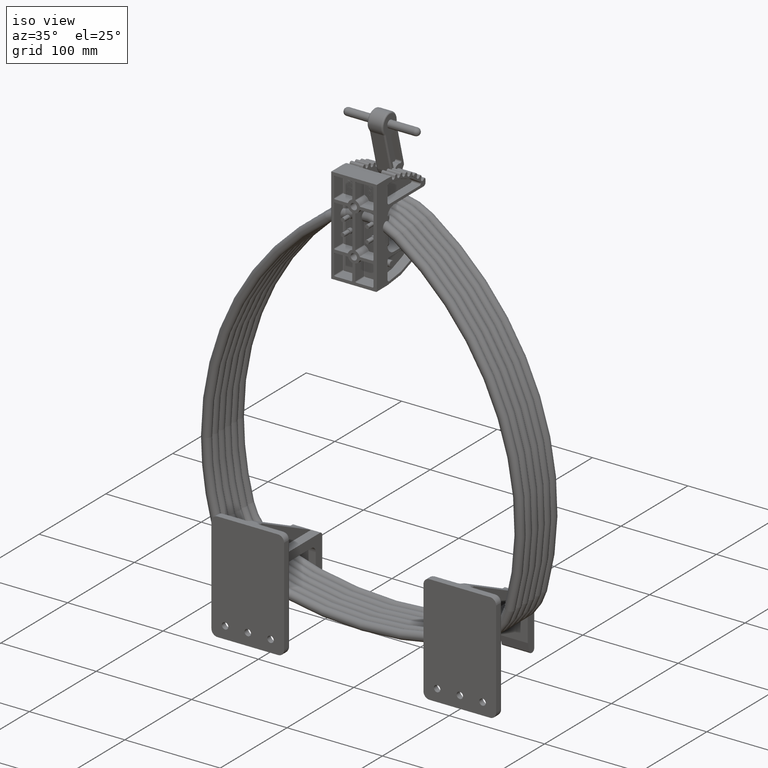
[diagram: clean part render]
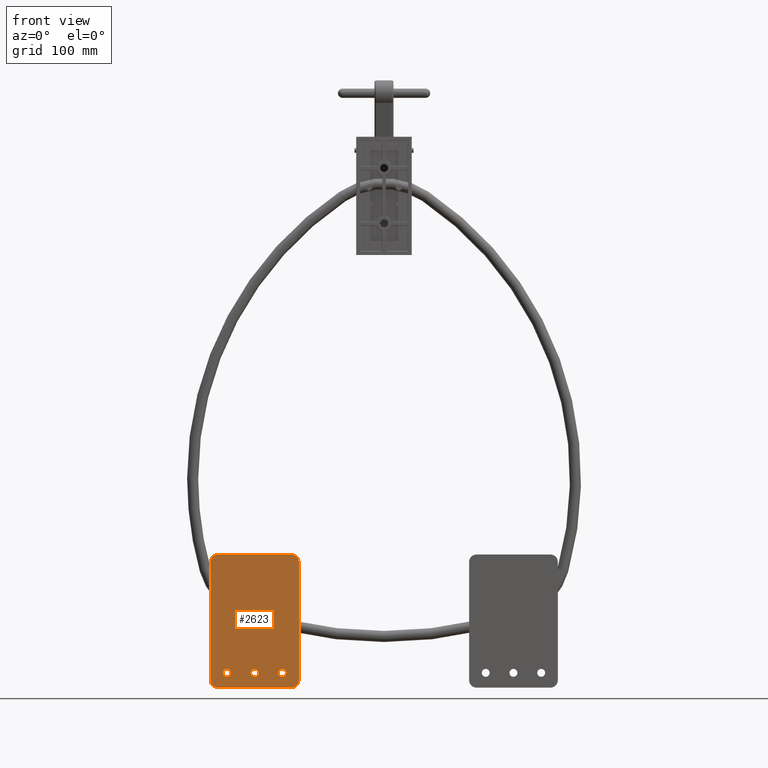
[diagram: tour spotlight — one face highlighted and labeled with its STEP entity id]
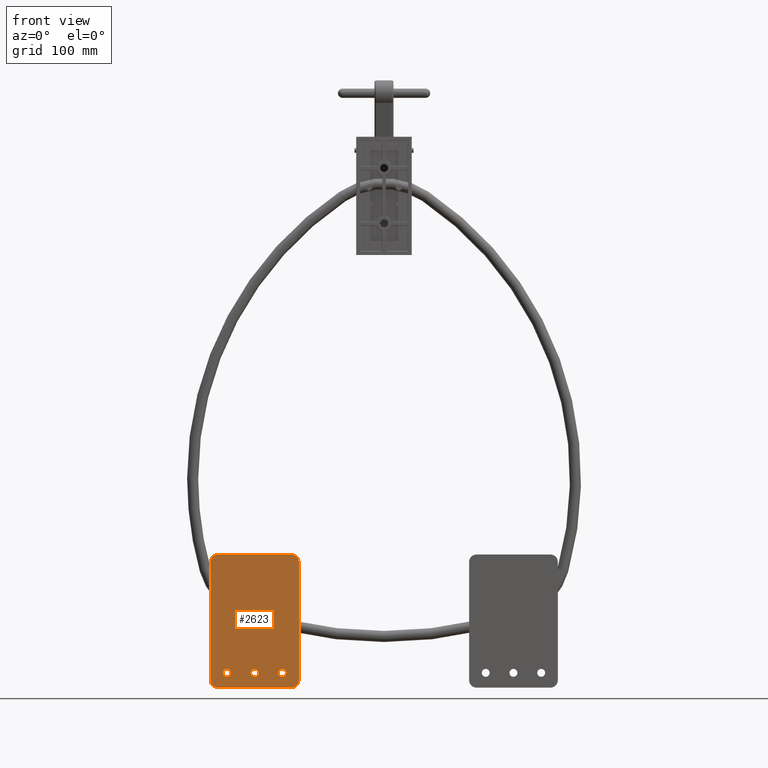
[diagram: tour spotlight — one face highlighted and labeled with its STEP entity id]
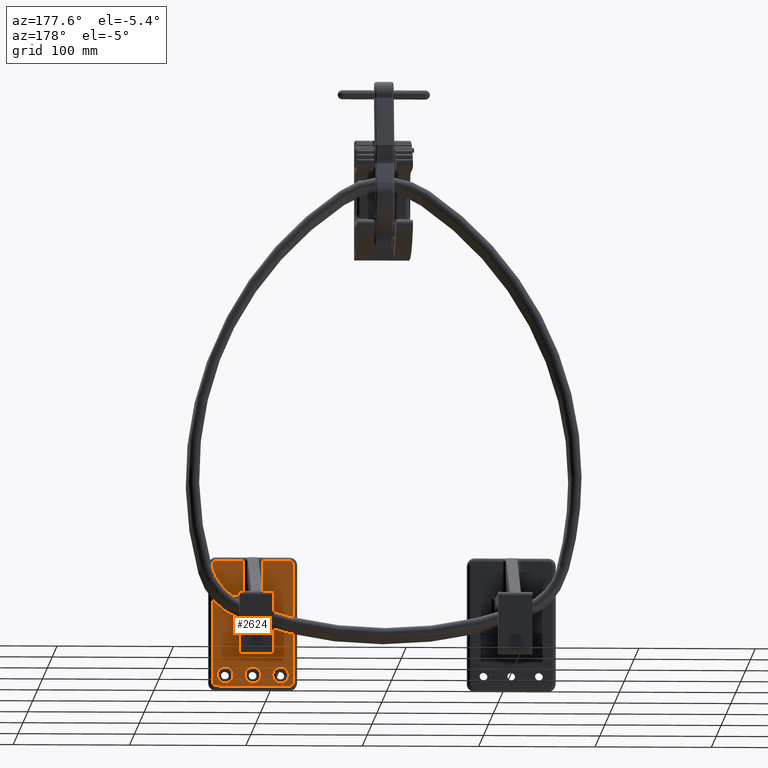
[diagram: tour spotlight — one face highlighted and labeled with its STEP entity id]
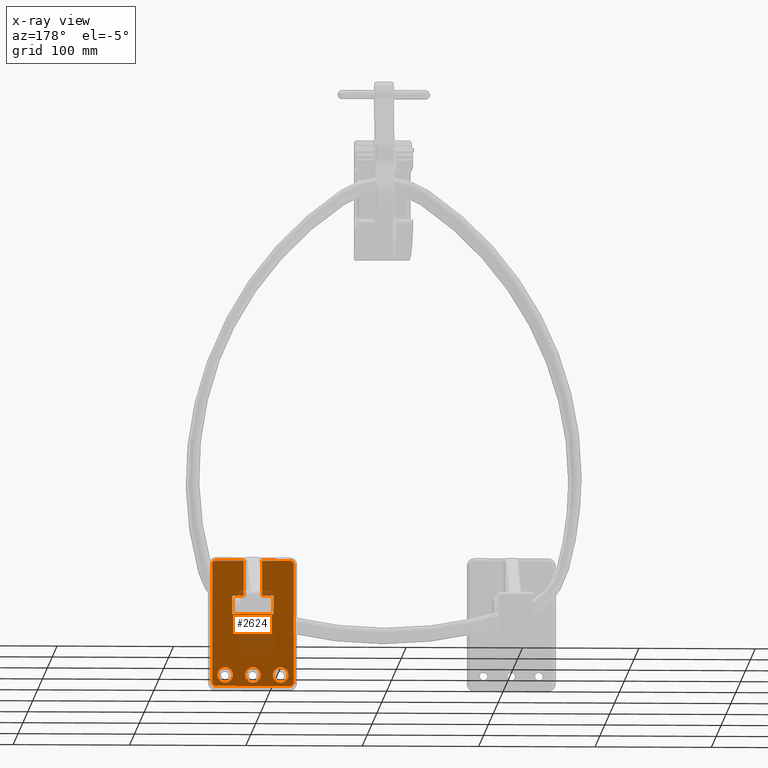
[diagram: x-ray of the same camera — body ghosted, this tour face saturated]
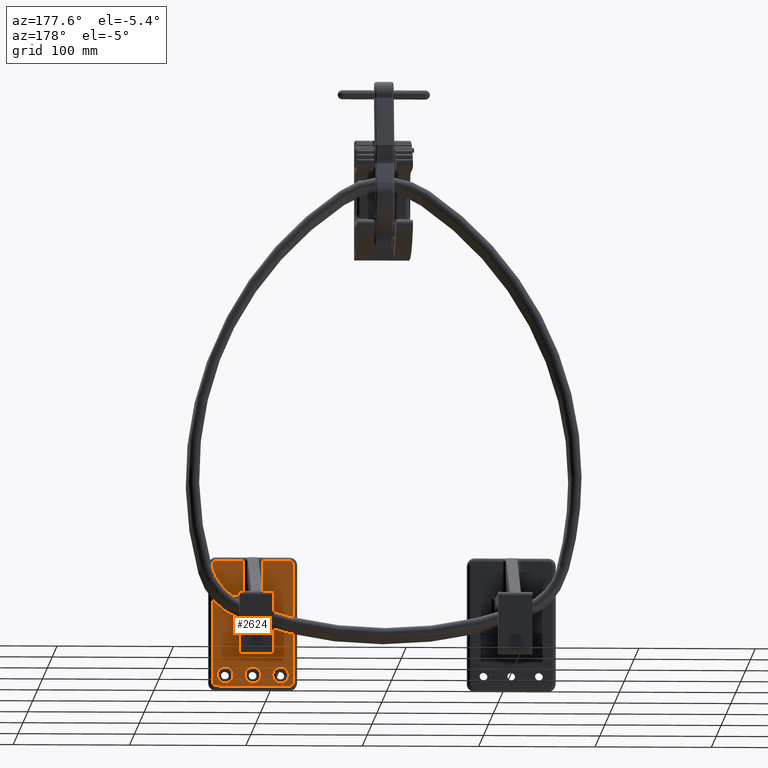
[diagram: tour spotlight — one face highlighted and labeled with its STEP entity id]
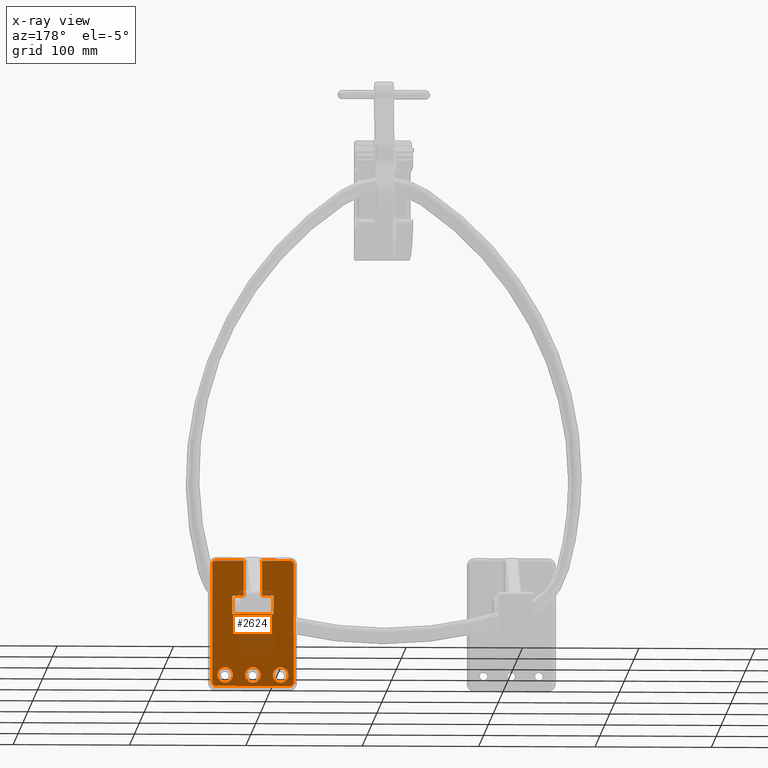
[diagram: x-ray of the same camera — body ghosted, this tour face saturated]
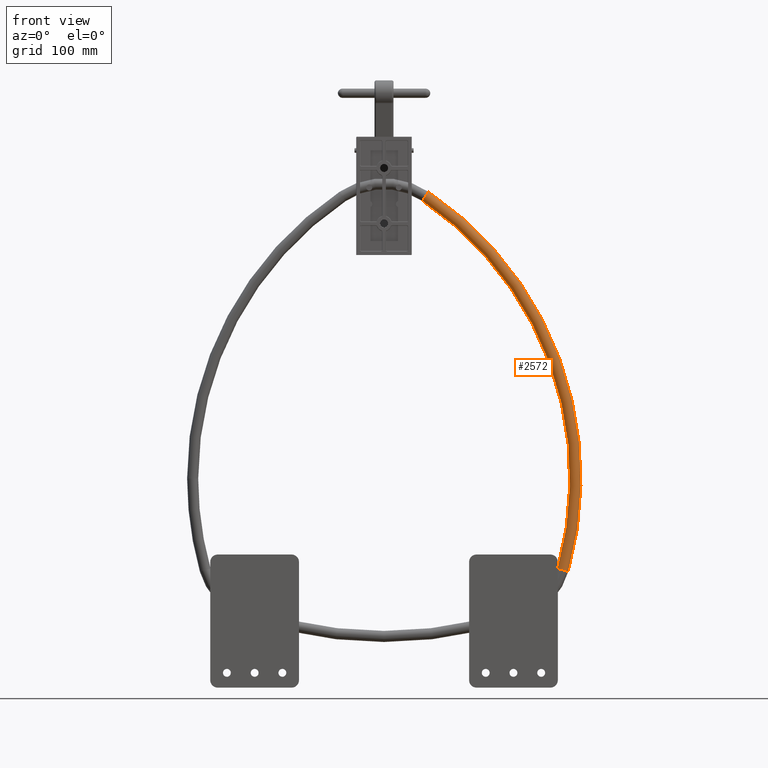
[diagram: tour spotlight — one face highlighted and labeled with its STEP entity id]
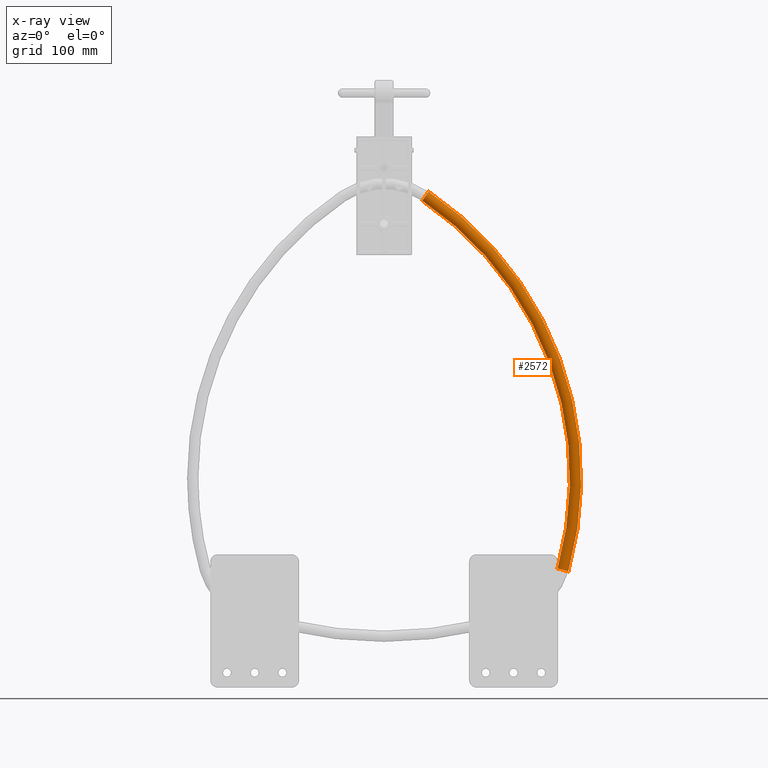
[diagram: x-ray of the same camera — body ghosted, this tour face saturated]
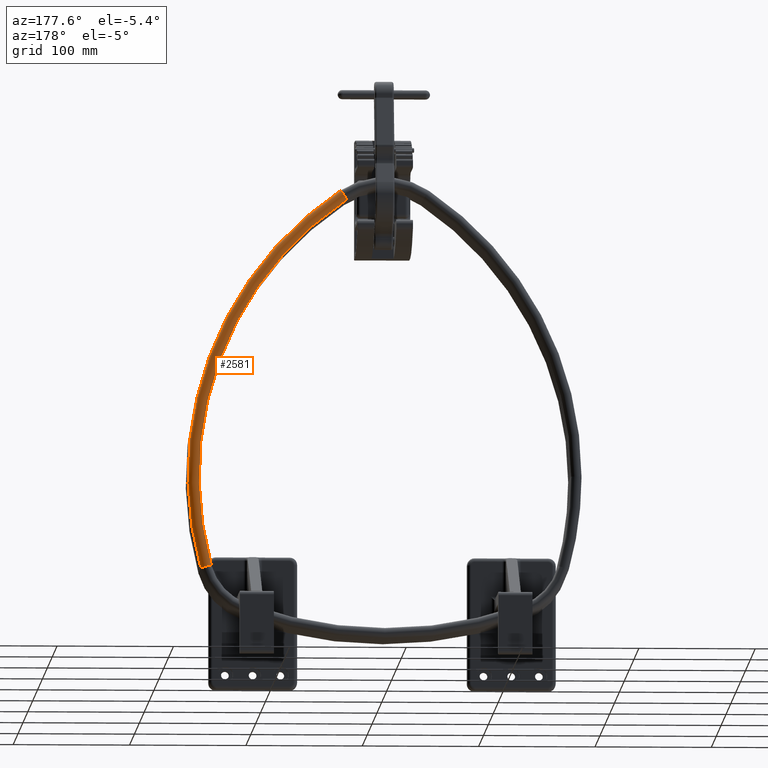
[diagram: tour spotlight — one face highlighted and labeled with its STEP entity id]
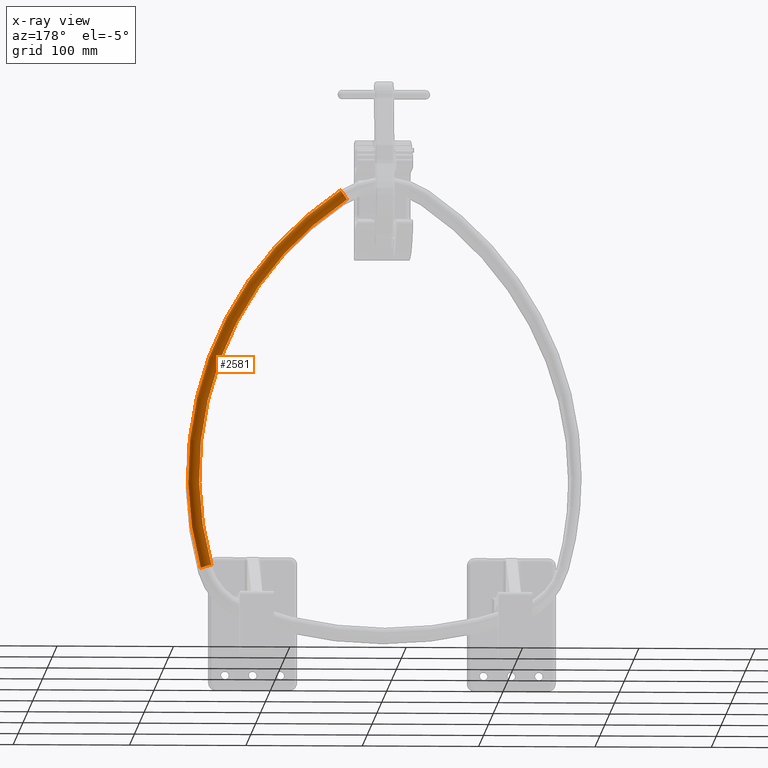
[diagram: x-ray of the same camera — body ghosted, this tour face saturated]
A machine part: a face-by-face anatomy tour. The part has 1052 B-rep faces; the first image is the clean iso view, then the 6 largest visible faces are spotlighted one at a time (largest first), each with its STEP entity span.

Face 1 — front view, entity #2623. In plain terms, the highlighted planar face has unit normal (-0, 1, 0).
Definition (entity closure, byte-faithful):
#1125 = CARTESIAN_POINT ( 'NONE',  ( 0.5889936941865174800, 4.541996558212013600, 0.9375000000000000000 ) ) ;
#1143 = DIRECTION ( 'NONE',  ( 1.000000000000000000, -0.0000000000000000000, -0.0000000000000000000 ) ) ;
#1144 = DIRECTION ( 'NONE',  ( 0.0000000000000000000, 0.0000000000000000000, -1.000000000000000000 ) ) ;
#2623 = ADVANCED_FACE ( 'NONE', ( #5855, #5861, #5863, #5865 ), #19444, .F. ) ;
#4727 = EDGE_CURVE ( 'NONE', #23000, #31976, #31738, .T. ) ;
#4738 = EDGE_CURVE ( 'NONE', #22943, #23028, #31756, .T. ) ;
#4740 = EDGE_CURVE ( 'NONE', #23028, #31951, #31755, .T. ) ;
#4743 = EDGE_CURVE ( 'NONE', #31951, #23000, #21830, .T. ) ;
#4752 = EDGE_CURVE ( 'NONE', #31976, #23184, #21861, .T. ) ;
#4755 = EDGE_CURVE ( 'NONE', #23184, #31922, #21859, .T. ) ;
#4758 = EDGE_CURVE ( 'NONE', #31922, #32014, #21884, .T. ) ;
#4761 = EDGE_CURVE ( 'NONE', #32014, #22943, #21889, .T. ) ;
#4763 = EDGE_CURVE ( 'NONE', #32032, #31919, #21903, .T. ) ;
#4764 = EDGE_CURVE ( 'NONE', #22957, #31955, #21906, .T. ) ;
#4765 = EDGE_CURVE ( 'NONE', #22932, #22929, #21910, .T. ) ;
#5115 = AXIS2_PLACEMENT_3D ( 'NONE', #19441, #19435, #19436 ) ;
#5261 = AXIS2_PLACEMENT_3D ( 'NONE', #26227, #20976, #20977 ) ;
#5263 = AXIS2_PLACEMENT_3D ( 'NONE', #20986, #20988, #20989 ) ;
#5266 = AXIS2_PLACEMENT_3D ( 'NONE', #21008, #21009, #21010 ) ;
#5267 = AXIS2_PLACEMENT_3D ( 'NONE', #21022, #21024, #21025 ) ;
#5268 = AXIS2_PLACEMENT_3D ( 'NONE', #21023, #21036, #21037 ) ;
#5270 = AXIS2_PLACEMENT_3D ( 'NONE', #21038, #21039, #21040 ) ;
#5272 = AXIS2_PLACEMENT_3D ( 'NONE', #21041, #21042, #21043 ) ;
#5855 = FACE_BOUND ( 'NONE', #18309, .T. ) ;
#5861 = FACE_BOUND ( 'NONE', #18326, .T. ) ;
#5863 = FACE_BOUND ( 'NONE', #18327, .T. ) ;
#5865 = FACE_OUTER_BOUND ( 'NONE', #18328, .T. ) ;
#6345 = ORIENTED_EDGE ( 'NONE', *, *, #4764, .T. ) ;
#6346 = ORIENTED_EDGE ( 'NONE', *, *, #9719, .T. ) ;
#6347 = ORIENTED_EDGE ( 'NONE', *, *, #4765, .T. ) ;
#6348 = ORIENTED_EDGE ( 'NONE', *, *, #9632, .T. ) ;
#9631 = EDGE_CURVE ( 'NONE', #31919, #32032, #29374, .T. ) ;
#9632 = EDGE_CURVE ( 'NONE', #22929, #22932, #29376, .T. ) ;
#9719 = EDGE_CURVE ( 'NONE', #31955, #22957, #29500, .T. ) ;
#15620 = CARTESIAN_POINT ( 'NONE',  ( 0.5889936941865174800, 4.541996558212013600, -0.8045000000000001000 ) ) ;
#15623 = CARTESIAN_POINT ( 'NONE',  ( 0.5889936941865192600, 4.791996558212013600, 1.500000000000000400 ) ) ;
#15650 = CARTESIAN_POINT ( 'NONE',  ( 0.5889936941865177000, 0.7919965582120138700, -1.499999999999999800 ) ) ;
#15654 = CARTESIAN_POINT ( 'NONE',  ( 0.5889936941865174800, 4.541996558212013600, 1.070500000000000000 ) ) ;
#16759 = CARTESIAN_POINT ( 'NONE',  ( 0.5889936941865175900, 0.5419965582120140900, 1.250000000000000900 ) ) ;
#16797 = CARTESIAN_POINT ( 'NONE',  ( 0.5889936941865193700, 5.041996558212013600, 1.250000000000000000 ) ) ;
#16815 = CARTESIAN_POINT ( 'NONE',  ( 0.5889936941865174800, 4.541996558212013600, -1.070500000000000000 ) ) ;
#18309 = EDGE_LOOP ( 'NONE', ( #6345, #6346 ) ) ;
#18326 = EDGE_LOOP ( 'NONE', ( #6347, #6348 ) ) ;
#18327 = EDGE_LOOP ( 'NONE', ( #32165, #32167 ) ) ;
#18328 = EDGE_LOOP ( 'NONE', ( #32169, #32171, #32173, #32175, #32177, #32179, #32181, #32183 ) ) ;
#19435 = DIRECTION ( 'NONE',  ( 1.000000000000000000, -3.642463991552351500E-016, -0.0000000000000000000 ) ) ;
#19436 = DIRECTION ( 'NONE',  ( 3.642463991552351500E-016, 1.000000000000000000, 0.0000000000000000000 ) ) ;
#19441 = CARTESIAN_POINT ( 'NONE',  ( 0.5889936941865192600, 4.791996558212013600, -1.250000000000000000 ) ) ;
#19444 = PLANE ( 'NONE',  #5115 ) ;
#20906 = CARTESIAN_POINT ( 'NONE',  ( 0.5889936941865174800, 4.541996558212013600, 0.1329999999999999200 ) ) ;
#20909 = CARTESIAN_POINT ( 'NONE',  ( 0.5889936941865174800, 4.541996558212013600, -0.1329999999999999200 ) ) ;
#20920 = CARTESIAN_POINT ( 'NONE',  ( 0.5889936941865192600, 5.041996558212013600, -1.250000000000000000 ) ) ;
#20934 = CARTESIAN_POINT ( 'NONE',  ( 0.5889936941865174800, 4.541996558212013600, 0.8045000000000001000 ) ) ;
#20976 = DIRECTION ( 'NONE',  ( -1.000000000000000000, 3.642463991552351900E-016, 0.0000000000000000000 ) ) ;
#20977 = DIRECTION ( 'NONE',  ( 2.731847993664259800E-016, 1.000000000000000000, 0.0000000000000000000 ) ) ;
#20986 = CARTESIAN_POINT ( 'NONE',  ( 0.5889936941865177000, 0.7919965582120138700, -1.250000000000000200 ) ) ;
#20988 = DIRECTION ( 'NONE',  ( -1.000000000000000000, 3.642463991552351900E-016, 0.0000000000000000000 ) ) ;
#20989 = DIRECTION ( 'NONE',  ( 2.731847993664266700E-016, 1.000000000000000000, 0.0000000000000000000 ) ) ;
#21005 = CARTESIAN_POINT ( 'NONE',  ( 0.5889936941865192600, 4.791996558212013600, 1.500000000000000400 ) ) ;
#21008 = CARTESIAN_POINT ( 'NONE',  ( 0.5889936941865177000, 0.7919965582120138700, 1.250000000000000900 ) ) ;
#21009 = DIRECTION ( 'NONE',  ( -1.000000000000000000, 3.642463991552351900E-016, 0.0000000000000000000 ) ) ;
#21010 = DIRECTION ( 'NONE',  ( 2.731847993664265200E-016, 1.000000000000000000, 0.0000000000000000000 ) ) ;
#21016 = DIRECTION ( 'NONE',  ( 3.756290991288361200E-016, 1.000000000000000000, -6.829619984160658000E-017 ) ) ;
#21022 = CARTESIAN_POINT ( 'NONE',  ( 0.5889936941865192600, 4.791996558212013600, 1.250000000000000000 ) ) ;
#21023 = CARTESIAN_POINT ( 'NONE',  ( 0.5889936941865174800, 4.541996558212013600, -0.9375000000000000000 ) ) ;
#21024 = DIRECTION ( 'NONE',  ( -1.000000000000000000, 3.642463991552351900E-016, 0.0000000000000000000 ) ) ;
#21025 = DIRECTION ( 'NONE',  ( 2.731847993664259800E-016, 1.000000000000000000, 0.0000000000000000000 ) ) ;
#21030 = CARTESIAN_POINT ( 'NONE',  ( 0.5889936941865192600, 5.041996558212013600, -1.250000000000000000 ) ) ;
#21031 = DIRECTION ( 'NONE',  ( -0.0000000000000000000, -0.0000000000000000000, -1.000000000000000000 ) ) ;
#21036 = DIRECTION ( 'NONE',  ( 1.000000000000000000, -0.0000000000000000000, -0.0000000000000000000 ) ) ;
#21037 = DIRECTION ( 'NONE',  ( 0.0000000000000000000, 0.0000000000000000000, -1.000000000000000000 ) ) ;
#21038 = CARTESIAN_POINT ( 'NONE',  ( 0.5889936941865174800, 4.541996558212013600, 0.9375000000000000000 ) ) ;
#21039 = DIRECTION ( 'NONE',  ( 1.000000000000000000, -0.0000000000000000000, -0.0000000000000000000 ) ) ;
#21040 = DIRECTION ( 'NONE',  ( 0.0000000000000000000, 0.0000000000000000000, -1.000000000000000000 ) ) ;
#21041 = CARTESIAN_POINT ( 'NONE',  ( 0.5889936941865174800, 4.541996558212013600, 0.0000000000000000000 ) ) ;
#21042 = DIRECTION ( 'NONE',  ( 1.000000000000000000, -0.0000000000000000000, -0.0000000000000000000 ) ) ;
#21043 = DIRECTION ( 'NONE',  ( 0.0000000000000000000, 0.0000000000000000000, -1.000000000000000000 ) ) ;
#21830 = CIRCLE ( 'NONE', #5263, 0.2499999999999996700 ) ;
#21859 = LINE ( 'NONE', #21005, #21868 ) ;
#21861 = CIRCLE ( 'NONE', #5266, 0.2499999999999998100 ) ;
#21868 = VECTOR ( 'NONE', #21016, 39.37007874015748100 ) ;
#21884 = CIRCLE ( 'NONE', #5267, 0.2500000000000003300 ) ;
#21889 = LINE ( 'NONE', #21030, #21892 ) ;
#21892 = VECTOR ( 'NONE', #21031, 39.37007874015748100 ) ;
#21903 = CIRCLE ( 'NONE', #5268, 0.1329999999999999200 ) ;
#21906 = CIRCLE ( 'NONE', #5270, 0.1329999999999999200 ) ;
#21910 = CIRCLE ( 'NONE', #5272, 0.1329999999999999200 ) ;
#22929 = VERTEX_POINT ( 'NONE', #20906 ) ;
#22932 = VERTEX_POINT ( 'NONE', #20909 ) ;
#22943 = VERTEX_POINT ( 'NONE', #20920 ) ;
#22957 = VERTEX_POINT ( 'NONE', #20934 ) ;
#23000 = VERTEX_POINT ( 'NONE', #26925 ) ;
#23028 = VERTEX_POINT ( 'NONE', #26953 ) ;
#23184 = VERTEX_POINT ( 'NONE', #27107 ) ;
#26201 = CARTESIAN_POINT ( 'NONE',  ( 0.5889936941865175900, 0.5419965582120142000, -1.250000000000000200 ) ) ;
#26202 = DIRECTION ( 'NONE',  ( 0.0000000000000000000, -2.731847993664262000E-017, 1.000000000000000000 ) ) ;
#26224 = CARTESIAN_POINT ( 'NONE',  ( 0.5889936941865192600, 4.791996558212013600, -1.500000000000000400 ) ) ;
#26227 = CARTESIAN_POINT ( 'NONE',  ( 0.5889936941865192600, 4.791996558212013600, -1.250000000000000000 ) ) ;
#26229 = DIRECTION ( 'NONE',  ( -3.756290991288361200E-016, -1.000000000000000000, 1.365923996832131600E-016 ) ) ;
#26925 = CARTESIAN_POINT ( 'NONE',  ( 0.5889936941865175900, 0.5419965582120142000, -1.250000000000000200 ) ) ;
#26953 = CARTESIAN_POINT ( 'NONE',  ( 0.5889936941865192600, 4.791996558212013600, -1.500000000000000400 ) ) ;
#27107 = CARTESIAN_POINT ( 'NONE',  ( 0.5889936941865177000, 0.7919965582120138700, 1.500000000000000700 ) ) ;
#28764 = AXIS2_PLACEMENT_3D ( 'NONE', #33980, #33987, #33988 ) ;
#28771 = AXIS2_PLACEMENT_3D ( 'NONE', #33983, #33990, #33991 ) ;
#28817 = AXIS2_PLACEMENT_3D ( 'NONE', #1125, #1143, #1144 ) ;
#29374 = CIRCLE ( 'NONE', #28764, 0.1329999999999999200 ) ;
#29376 = CIRCLE ( 'NONE', #28771, 0.1329999999999999200 ) ;
#29500 = CIRCLE ( 'NONE', #28817, 0.1329999999999999200 ) ;
#31724 = VECTOR ( 'NONE', #26202, 39.37007874015748100 ) ;
#31738 = LINE ( 'NONE', #26201, #31724 ) ;
#31755 = LINE ( 'NONE', #26224, #31757 ) ;
#31756 = CIRCLE ( 'NONE', #5261, 0.2500000000000003300 ) ;
#31757 = VECTOR ( 'NONE', #26229, 39.37007874015748100 ) ;
#31919 = VERTEX_POINT ( 'NONE', #15620 ) ;
#31922 = VERTEX_POINT ( 'NONE', #15623 ) ;
#31951 = VERTEX_POINT ( 'NONE', #15650 ) ;
#31955 = VERTEX_POINT ( 'NONE', #15654 ) ;
#31976 = VERTEX_POINT ( 'NONE', #16759 ) ;
#32014 = VERTEX_POINT ( 'NONE', #16797 ) ;
#32032 = VERTEX_POINT ( 'NONE', #16815 ) ;
#32165 = ORIENTED_EDGE ( 'NONE', *, *, #4763, .T. ) ;
#32167 = ORIENTED_EDGE ( 'NONE', *, *, #9631, .T. ) ;
#32169 = ORIENTED_EDGE ( 'NONE', *, *, #4738, .T. ) ;
#32171 = ORIENTED_EDGE ( 'NONE', *, *, #4740, .T. ) ;
#32173 = ORIENTED_EDGE ( 'NONE', *, *, #4743, .T. ) ;
#32175 = ORIENTED_EDGE ( 'NONE', *, *, #4727, .T. ) ;
#32177 = ORIENTED_EDGE ( 'NONE', *, *, #4752, .T. ) ;
#32179 = ORIENTED_EDGE ( 'NONE', *, *, #4755, .T. ) ;
#32181 = ORIENTED_EDGE ( 'NONE', *, *, #4758, .T. ) ;
#32183 = ORIENTED_EDGE ( 'NONE', *, *, #4761, .T. ) ;
#33980 = CARTESIAN_POINT ( 'NONE',  ( 0.5889936941865174800, 4.541996558212013600, -0.9375000000000000000 ) ) ;
#33983 = CARTESIAN_POINT ( 'NONE',  ( 0.5889936941865174800, 4.541996558212013600, 0.0000000000000000000 ) ) ;
#33987 = DIRECTION ( 'NONE',  ( 1.000000000000000000, -0.0000000000000000000, -0.0000000000000000000 ) ) ;
#33988 = DIRECTION ( 'NONE',  ( 0.0000000000000000000, 0.0000000000000000000, -1.000000000000000000 ) ) ;
#33990 = DIRECTION ( 'NONE',  ( 1.000000000000000000, -0.0000000000000000000, -0.0000000000000000000 ) ) ;
#33991 = DIRECTION ( 'NONE',  ( 0.0000000000000000000, 0.0000000000000000000, -1.000000000000000000 ) ) ;

Face 2 — front view, entity #2623. In plain terms, the highlighted planar face has unit normal (-0, 1, -0).
Definition (entity closure, byte-faithful):
#1125 = CARTESIAN_POINT ( 'NONE',  ( 0.5889936941865174800, 4.541996558212013600, 0.9375000000000000000 ) ) ;
#1143 = DIRECTION ( 'NONE',  ( 1.000000000000000000, -0.0000000000000000000, -0.0000000000000000000 ) ) ;
#1144 = DIRECTION ( 'NONE',  ( 0.0000000000000000000, 0.0000000000000000000, -1.000000000000000000 ) ) ;
#2623 = ADVANCED_FACE ( 'NONE', ( #5855, #5861, #5863, #5865 ), #19444, .F. ) ;
#4727 = EDGE_CURVE ( 'NONE', #23000, #31976, #31738, .T. ) ;
#4738 = EDGE_CURVE ( 'NONE', #22943, #23028, #31756, .T. ) ;
#4740 = EDGE_CURVE ( 'NONE', #23028, #31951, #31755, .T. ) ;
#4743 = EDGE_CURVE ( 'NONE', #31951, #23000, #21830, .T. ) ;
#4752 = EDGE_CURVE ( 'NONE', #31976, #23184, #21861, .T. ) ;
#4755 = EDGE_CURVE ( 'NONE', #23184, #31922, #21859, .T. ) ;
#4758 = EDGE_CURVE ( 'NONE', #31922, #32014, #21884, .T. ) ;
#4761 = EDGE_CURVE ( 'NONE', #32014, #22943, #21889, .T. ) ;
#4763 = EDGE_CURVE ( 'NONE', #32032, #31919, #21903, .T. ) ;
#4764 = EDGE_CURVE ( 'NONE', #22957, #31955, #21906, .T. ) ;
#4765 = EDGE_CURVE ( 'NONE', #22932, #22929, #21910, .T. ) ;
#5115 = AXIS2_PLACEMENT_3D ( 'NONE', #19441, #19435, #19436 ) ;
#5261 = AXIS2_PLACEMENT_3D ( 'NONE', #26227, #20976, #20977 ) ;
#5263 = AXIS2_PLACEMENT_3D ( 'NONE', #20986, #20988, #20989 ) ;
#5266 = AXIS2_PLACEMENT_3D ( 'NONE', #21008, #21009, #21010 ) ;
#5267 = AXIS2_PLACEMENT_3D ( 'NONE', #21022, #21024, #21025 ) ;
#5268 = AXIS2_PLACEMENT_3D ( 'NONE', #21023, #21036, #21037 ) ;
#5270 = AXIS2_PLACEMENT_3D ( 'NONE', #21038, #21039, #21040 ) ;
#5272 = AXIS2_PLACEMENT_3D ( 'NONE', #21041, #21042, #21043 ) ;
#5855 = FACE_BOUND ( 'NONE', #18309, .T. ) ;
#5861 = FACE_BOUND ( 'NONE', #18326, .T. ) ;
#5863 = FACE_BOUND ( 'NONE', #18327, .T. ) ;
#5865 = FACE_OUTER_BOUND ( 'NONE', #18328, .T. ) ;
#6345 = ORIENTED_EDGE ( 'NONE', *, *, #4764, .T. ) ;
#6346 = ORIENTED_EDGE ( 'NONE', *, *, #9719, .T. ) ;
#6347 = ORIENTED_EDGE ( 'NONE', *, *, #4765, .T. ) ;
#6348 = ORIENTED_EDGE ( 'NONE', *, *, #9632, .T. ) ;
#9631 = EDGE_CURVE ( 'NONE', #31919, #32032, #29374, .T. ) ;
#9632 = EDGE_CURVE ( 'NONE', #22929, #22932, #29376, .T. ) ;
#9719 = EDGE_CURVE ( 'NONE', #31955, #22957, #29500, .T. ) ;
#15620 = CARTESIAN_POINT ( 'NONE',  ( 0.5889936941865174800, 4.541996558212013600, -0.8045000000000001000 ) ) ;
#15623 = CARTESIAN_POINT ( 'NONE',  ( 0.5889936941865192600, 4.791996558212013600, 1.500000000000000400 ) ) ;
#15650 = CARTESIAN_POINT ( 'NONE',  ( 0.5889936941865177000, 0.7919965582120138700, -1.499999999999999800 ) ) ;
#15654 = CARTESIAN_POINT ( 'NONE',  ( 0.5889936941865174800, 4.541996558212013600, 1.070500000000000000 ) ) ;
#16759 = CARTESIAN_POINT ( 'NONE',  ( 0.5889936941865175900, 0.5419965582120140900, 1.250000000000000900 ) ) ;
#16797 = CARTESIAN_POINT ( 'NONE',  ( 0.5889936941865193700, 5.041996558212013600, 1.250000000000000000 ) ) ;
#16815 = CARTESIAN_POINT ( 'NONE',  ( 0.5889936941865174800, 4.541996558212013600, -1.070500000000000000 ) ) ;
#18309 = EDGE_LOOP ( 'NONE', ( #6345, #6346 ) ) ;
#18326 = EDGE_LOOP ( 'NONE', ( #6347, #6348 ) ) ;
#18327 = EDGE_LOOP ( 'NONE', ( #32165, #32167 ) ) ;
#18328 = EDGE_LOOP ( 'NONE', ( #32169, #32171, #32173, #32175, #32177, #32179, #32181, #32183 ) ) ;
#19435 = DIRECTION ( 'NONE',  ( 1.000000000000000000, -3.642463991552351500E-016, -0.0000000000000000000 ) ) ;
#19436 = DIRECTION ( 'NONE',  ( 3.642463991552351500E-016, 1.000000000000000000, 0.0000000000000000000 ) ) ;
#19441 = CARTESIAN_POINT ( 'NONE',  ( 0.5889936941865192600, 4.791996558212013600, -1.250000000000000000 ) ) ;
#19444 = PLANE ( 'NONE',  #5115 ) ;
#20906 = CARTESIAN_POINT ( 'NONE',  ( 0.5889936941865174800, 4.541996558212013600, 0.1329999999999999200 ) ) ;
#20909 = CARTESIAN_POINT ( 'NONE',  ( 0.5889936941865174800, 4.541996558212013600, -0.1329999999999999200 ) ) ;
#20920 = CARTESIAN_POINT ( 'NONE',  ( 0.5889936941865192600, 5.041996558212013600, -1.250000000000000000 ) ) ;
#20934 = CARTESIAN_POINT ( 'NONE',  ( 0.5889936941865174800, 4.541996558212013600, 0.8045000000000001000 ) ) ;
#20976 = DIRECTION ( 'NONE',  ( -1.000000000000000000, 3.642463991552351900E-016, 0.0000000000000000000 ) ) ;
#20977 = DIRECTION ( 'NONE',  ( 2.731847993664259800E-016, 1.000000000000000000, 0.0000000000000000000 ) ) ;
#20986 = CARTESIAN_POINT ( 'NONE',  ( 0.5889936941865177000, 0.7919965582120138700, -1.250000000000000200 ) ) ;
#20988 = DIRECTION ( 'NONE',  ( -1.000000000000000000, 3.642463991552351900E-016, 0.0000000000000000000 ) ) ;
#20989 = DIRECTION ( 'NONE',  ( 2.731847993664266700E-016, 1.000000000000000000, 0.0000000000000000000 ) ) ;
#21005 = CARTESIAN_POINT ( 'NONE',  ( 0.5889936941865192600, 4.791996558212013600, 1.500000000000000400 ) ) ;
#21008 = CARTESIAN_POINT ( 'NONE',  ( 0.5889936941865177000, 0.7919965582120138700, 1.250000000000000900 ) ) ;
#21009 = DIRECTION ( 'NONE',  ( -1.000000000000000000, 3.642463991552351900E-016, 0.0000000000000000000 ) ) ;
#21010 = DIRECTION ( 'NONE',  ( 2.731847993664265200E-016, 1.000000000000000000, 0.0000000000000000000 ) ) ;
#21016 = DIRECTION ( 'NONE',  ( 3.756290991288361200E-016, 1.000000000000000000, -6.829619984160658000E-017 ) ) ;
#21022 = CARTESIAN_POINT ( 'NONE',  ( 0.5889936941865192600, 4.791996558212013600, 1.250000000000000000 ) ) ;
#21023 = CARTESIAN_POINT ( 'NONE',  ( 0.5889936941865174800, 4.541996558212013600, -0.9375000000000000000 ) ) ;
#21024 = DIRECTION ( 'NONE',  ( -1.000000000000000000, 3.642463991552351900E-016, 0.0000000000000000000 ) ) ;
#21025 = DIRECTION ( 'NONE',  ( 2.731847993664259800E-016, 1.000000000000000000, 0.0000000000000000000 ) ) ;
#21030 = CARTESIAN_POINT ( 'NONE',  ( 0.5889936941865192600, 5.041996558212013600, -1.250000000000000000 ) ) ;
#21031 = DIRECTION ( 'NONE',  ( -0.0000000000000000000, -0.0000000000000000000, -1.000000000000000000 ) ) ;
#21036 = DIRECTION ( 'NONE',  ( 1.000000000000000000, -0.0000000000000000000, -0.0000000000000000000 ) ) ;
#21037 = DIRECTION ( 'NONE',  ( 0.0000000000000000000, 0.0000000000000000000, -1.000000000000000000 ) ) ;
#21038 = CARTESIAN_POINT ( 'NONE',  ( 0.5889936941865174800, 4.541996558212013600, 0.9375000000000000000 ) ) ;
#21039 = DIRECTION ( 'NONE',  ( 1.000000000000000000, -0.0000000000000000000, -0.0000000000000000000 ) ) ;
#21040 = DIRECTION ( 'NONE',  ( 0.0000000000000000000, 0.0000000000000000000, -1.000000000000000000 ) ) ;
#21041 = CARTESIAN_POINT ( 'NONE',  ( 0.5889936941865174800, 4.541996558212013600, 0.0000000000000000000 ) ) ;
#21042 = DIRECTION ( 'NONE',  ( 1.000000000000000000, -0.0000000000000000000, -0.0000000000000000000 ) ) ;
#21043 = DIRECTION ( 'NONE',  ( 0.0000000000000000000, 0.0000000000000000000, -1.000000000000000000 ) ) ;
#21830 = CIRCLE ( 'NONE', #5263, 0.2499999999999996700 ) ;
#21859 = LINE ( 'NONE', #21005, #21868 ) ;
#21861 = CIRCLE ( 'NONE', #5266, 0.2499999999999998100 ) ;
#21868 = VECTOR ( 'NONE', #21016, 39.37007874015748100 ) ;
#21884 = CIRCLE ( 'NONE', #5267, 0.2500000000000003300 ) ;
#21889 = LINE ( 'NONE', #21030, #21892 ) ;
#21892 = VECTOR ( 'NONE', #21031, 39.37007874015748100 ) ;
#21903 = CIRCLE ( 'NONE', #5268, 0.1329999999999999200 ) ;
#21906 = CIRCLE ( 'NONE', #5270, 0.1329999999999999200 ) ;
#21910 = CIRCLE ( 'NONE', #5272, 0.1329999999999999200 ) ;
#22929 = VERTEX_POINT ( 'NONE', #20906 ) ;
#22932 = VERTEX_POINT ( 'NONE', #20909 ) ;
#22943 = VERTEX_POINT ( 'NONE', #20920 ) ;
#22957 = VERTEX_POINT ( 'NONE', #20934 ) ;
#23000 = VERTEX_POINT ( 'NONE', #26925 ) ;
#23028 = VERTEX_POINT ( 'NONE', #26953 ) ;
#23184 = VERTEX_POINT ( 'NONE', #27107 ) ;
#26201 = CARTESIAN_POINT ( 'NONE',  ( 0.5889936941865175900, 0.5419965582120142000, -1.250000000000000200 ) ) ;
#26202 = DIRECTION ( 'NONE',  ( 0.0000000000000000000, -2.731847993664262000E-017, 1.000000000000000000 ) ) ;
#26224 = CARTESIAN_POINT ( 'NONE',  ( 0.5889936941865192600, 4.791996558212013600, -1.500000000000000400 ) ) ;
#26227 = CARTESIAN_POINT ( 'NONE',  ( 0.5889936941865192600, 4.791996558212013600, -1.250000000000000000 ) ) ;
#26229 = DIRECTION ( 'NONE',  ( -3.756290991288361200E-016, -1.000000000000000000, 1.365923996832131600E-016 ) ) ;
#26925 = CARTESIAN_POINT ( 'NONE',  ( 0.5889936941865175900, 0.5419965582120142000, -1.250000000000000200 ) ) ;
#26953 = CARTESIAN_POINT ( 'NONE',  ( 0.5889936941865192600, 4.791996558212013600, -1.500000000000000400 ) ) ;
#27107 = CARTESIAN_POINT ( 'NONE',  ( 0.5889936941865177000, 0.7919965582120138700, 1.500000000000000700 ) ) ;
#28764 = AXIS2_PLACEMENT_3D ( 'NONE', #33980, #33987, #33988 ) ;
#28771 = AXIS2_PLACEMENT_3D ( 'NONE', #33983, #33990, #33991 ) ;
#28817 = AXIS2_PLACEMENT_3D ( 'NONE', #1125, #1143, #1144 ) ;
#29374 = CIRCLE ( 'NONE', #28764, 0.1329999999999999200 ) ;
#29376 = CIRCLE ( 'NONE', #28771, 0.1329999999999999200 ) ;
#29500 = CIRCLE ( 'NONE', #28817, 0.1329999999999999200 ) ;
#31724 = VECTOR ( 'NONE', #26202, 39.37007874015748100 ) ;
#31738 = LINE ( 'NONE', #26201, #31724 ) ;
#31755 = LINE ( 'NONE', #26224, #31757 ) ;
#31756 = CIRCLE ( 'NONE', #5261, 0.2500000000000003300 ) ;
#31757 = VECTOR ( 'NONE', #26229, 39.37007874015748100 ) ;
#31919 = VERTEX_POINT ( 'NONE', #15620 ) ;
#31922 = VERTEX_POINT ( 'NONE', #15623 ) ;
#31951 = VERTEX_POINT ( 'NONE', #15650 ) ;
#31955 = VERTEX_POINT ( 'NONE', #15654 ) ;
#31976 = VERTEX_POINT ( 'NONE', #16759 ) ;
#32014 = VERTEX_POINT ( 'NONE', #16797 ) ;
#32032 = VERTEX_POINT ( 'NONE', #16815 ) ;
#32165 = ORIENTED_EDGE ( 'NONE', *, *, #4763, .T. ) ;
#32167 = ORIENTED_EDGE ( 'NONE', *, *, #9631, .T. ) ;
#32169 = ORIENTED_EDGE ( 'NONE', *, *, #4738, .T. ) ;
#32171 = ORIENTED_EDGE ( 'NONE', *, *, #4740, .T. ) ;
#32173 = ORIENTED_EDGE ( 'NONE', *, *, #4743, .T. ) ;
#32175 = ORIENTED_EDGE ( 'NONE', *, *, #4727, .T. ) ;
#32177 = ORIENTED_EDGE ( 'NONE', *, *, #4752, .T. ) ;
#32179 = ORIENTED_EDGE ( 'NONE', *, *, #4755, .T. ) ;
#32181 = ORIENTED_EDGE ( 'NONE', *, *, #4758, .T. ) ;
#32183 = ORIENTED_EDGE ( 'NONE', *, *, #4761, .T. ) ;
#33980 = CARTESIAN_POINT ( 'NONE',  ( 0.5889936941865174800, 4.541996558212013600, -0.9375000000000000000 ) ) ;
#33983 = CARTESIAN_POINT ( 'NONE',  ( 0.5889936941865174800, 4.541996558212013600, 0.0000000000000000000 ) ) ;
#33987 = DIRECTION ( 'NONE',  ( 1.000000000000000000, -0.0000000000000000000, -0.0000000000000000000 ) ) ;
#33988 = DIRECTION ( 'NONE',  ( 0.0000000000000000000, 0.0000000000000000000, -1.000000000000000000 ) ) ;
#33990 = DIRECTION ( 'NONE',  ( 1.000000000000000000, -0.0000000000000000000, -0.0000000000000000000 ) ) ;
#33991 = DIRECTION ( 'NONE',  ( 0.0000000000000000000, 0.0000000000000000000, -1.000000000000000000 ) ) ;

Face 3 — auxiliary view, entity #2624. An x-ray twin of the same camera follows (body ghosted, this face saturated) — the face is partly hidden behind the body. In plain terms, the highlighted planar face has unit normal (-0, 1, -0).
Definition (entity closure, byte-faithful):
#1137 = CARTESIAN_POINT ( 'NONE',  ( 0.9639936941865191500, 4.541996558212013600, 0.9375000000000000000 ) ) ;
#1139 = DIRECTION ( 'NONE',  ( 1.000000000000000000, -0.0000000000000000000, -0.0000000000000000000 ) ) ;
#1140 = DIRECTION ( 'NONE',  ( 0.0000000000000000000, 0.0000000000000000000, -1.000000000000000000 ) ) ;
#2624 = ADVANCED_FACE ( 'NONE', ( #5864, #5862, #5867, #5869 ), #19437, .T. ) ;
#4747 = EDGE_CURVE ( 'NONE', #23047, #23039, #21832, .T. ) ;
#4760 = EDGE_CURVE ( 'NONE', #23034, #23044, #21885, .T. ) ;
#4762 = EDGE_CURVE ( 'NONE', #23096, #23047, #21899, .T. ) ;
#4766 = EDGE_CURVE ( 'NONE', #32028, #31974, #21913, .T. ) ;
#4767 = EDGE_CURVE ( 'NONE', #22937, #31796, #21916, .T. ) ;
#4768 = EDGE_CURVE ( 'NONE', #32038, #31964, #21919, .T. ) ;
#4769 = EDGE_CURVE ( 'NONE', #23039, #23034, #21917, .T. ) ;
#4770 = EDGE_CURVE ( 'NONE', #23044, #23067, #21921, .T. ) ;
#4771 = EDGE_CURVE ( 'NONE', #23067, #23085, #21925, .T. ) ;
#4772 = EDGE_CURVE ( 'NONE', #23085, #23122, #21928, .T. ) ;
#4773 = EDGE_CURVE ( 'NONE', #23122, #23131, #21932, .T. ) ;
#4774 = EDGE_CURVE ( 'NONE', #23131, #23050, #21937, .T. ) ;
#4775 = EDGE_CURVE ( 'NONE', #23050, #22928, #21939, .T. ) ;
#4776 = EDGE_CURVE ( 'NONE', #22928, #22934, #21948, .T. ) ;
#4777 = EDGE_CURVE ( 'NONE', #22934, #22931, #21879, .T. ) ;
#4778 = EDGE_CURVE ( 'NONE', #22931, #31895, #21954, .T. ) ;
#4779 = EDGE_CURVE ( 'NONE', #31895, #32025, #21895, .T. ) ;
#4780 = EDGE_CURVE ( 'NONE', #32025, #31996, #21959, .T. ) ;
#4781 = EDGE_CURVE ( 'NONE', #31996, #23096, #21945, .T. ) ;
#5116 = AXIS2_PLACEMENT_3D ( 'NONE', #19438, #19439, #19440 ) ;
#5271 = AXIS2_PLACEMENT_3D ( 'NONE', #21019, #21033, #21034 ) ;
#5273 = AXIS2_PLACEMENT_3D ( 'NONE', #21044, #21045, #21046 ) ;
#5274 = AXIS2_PLACEMENT_3D ( 'NONE', #21047, #21048, #21049 ) ;
#5275 = AXIS2_PLACEMENT_3D ( 'NONE', #21050, #21051, #21052 ) ;
#5276 = AXIS2_PLACEMENT_3D ( 'NONE', #21053, #21068, #21069 ) ;
#5277 = AXIS2_PLACEMENT_3D ( 'NONE', #21032, #21073, #21074 ) ;
#5278 = AXIS2_PLACEMENT_3D ( 'NONE', #21067, #21078, #21079 ) ;
#5862 = FACE_BOUND ( 'NONE', #18003, .T. ) ;
#5864 = FACE_BOUND ( 'NONE', #18320, .T. ) ;
#5867 = FACE_BOUND ( 'NONE', #17991, .T. ) ;
#5869 = FACE_OUTER_BOUND ( 'NONE', #17994, .T. ) ;
#9626 = EDGE_CURVE ( 'NONE', #31974, #32028, #29367, .T. ) ;
#9633 = EDGE_CURVE ( 'NONE', #31964, #32038, #29378, .T. ) ;
#9717 = EDGE_CURVE ( 'NONE', #31796, #22937, #29499, .T. ) ;
#15540 = CARTESIAN_POINT ( 'NONE',  ( 0.9639936941865191500, 4.541996558212013600, 1.203100000000000100 ) ) ;
#15597 = CARTESIAN_POINT ( 'NONE',  ( 0.9639936941865192600, 4.916996558212013600, -1.250000000000000000 ) ) ;
#15663 = CARTESIAN_POINT ( 'NONE',  ( 0.9639936941865191500, 4.541996558212013600, 0.2656000000000000000 ) ) ;
#16757 = CARTESIAN_POINT ( 'NONE',  ( 0.9639936941865191500, 4.541996558212013600, -0.6719000000000000500 ) ) ;
#16779 = CARTESIAN_POINT ( 'NONE',  ( 0.9639936941865192600, 4.791996558212013600, 1.375000000000000400 ) ) ;
#16808 = CARTESIAN_POINT ( 'NONE',  ( 0.9639936941865192600, 4.916996558212013600, 1.250000000000000000 ) ) ;
#16811 = CARTESIAN_POINT ( 'NONE',  ( 0.9639936941865191500, 4.541996558212013600, -1.203100000000000100 ) ) ;
#16821 = CARTESIAN_POINT ( 'NONE',  ( 0.9639936941865191500, 4.541996558212013600, -0.2656000000000000000 ) ) ;
#17991 = EDGE_LOOP ( 'NONE', ( #32193, #32195 ) ) ;
#17994 = EDGE_LOOP ( 'NONE', ( #32197, #32199, #32201, #32203, #32205, #32207, #32209, #32211, #32213, #32215, #32217, #32219, #32221, #32223, #32225, #32227 ) ) ;
#18003 = EDGE_LOOP ( 'NONE', ( #32189, #32191 ) ) ;
#18320 = EDGE_LOOP ( 'NONE', ( #32185, #32187 ) ) ;
#19437 = PLANE ( 'NONE',  #5116 ) ;
#19438 = CARTESIAN_POINT ( 'NONE',  ( 0.9639936941865192600, 4.791996558212013600, -1.250000000000000000 ) ) ;
#19439 = DIRECTION ( 'NONE',  ( 1.000000000000000000, -3.642463991552351500E-016, -0.0000000000000000000 ) ) ;
#19440 = DIRECTION ( 'NONE',  ( 3.642463991552351500E-016, 1.000000000000000000, 0.0000000000000000000 ) ) ;
#20905 = CARTESIAN_POINT ( 'NONE',  ( 0.9639936941865178100, 0.6669965582120140900, -1.250000000000000200 ) ) ;
#20908 = CARTESIAN_POINT ( 'NONE',  ( 0.9639936941865192600, 4.791996558212013600, -1.375000000000000400 ) ) ;
#20911 = CARTESIAN_POINT ( 'NONE',  ( 0.9639936941865178100, 0.7919965582120136500, -1.375000000000000000 ) ) ;
#20914 = CARTESIAN_POINT ( 'NONE',  ( 0.9639936941865191500, 4.541996558212013600, 0.6719000000000000500 ) ) ;
#20987 = CARTESIAN_POINT ( 'NONE',  ( 0.9639936941865178100, 0.6669965582120140900, 0.3125000000000000000 ) ) ;
#20998 = DIRECTION ( 'NONE',  ( 9.950657947316613400E-033, 2.731847993664262000E-017, -1.000000000000000000 ) ) ;
#21019 = CARTESIAN_POINT ( 'NONE',  ( 0.9639936941865178100, 0.7919965582120136500, 1.250000000000000900 ) ) ;
#21028 = CARTESIAN_POINT ( 'NONE',  ( 0.9639936941865181500, 1.854496558212011900, -1.250000000000000000 ) ) ;
#21029 = DIRECTION ( 'NONE',  ( -0.0000000000000000000, -0.0000000000000000000, 1.000000000000000000 ) ) ;
#21032 = CARTESIAN_POINT ( 'NONE',  ( 0.9639936941865192600, 4.791996558212013600, -1.250000000000000000 ) ) ;
#21033 = DIRECTION ( 'NONE',  ( 1.000000000000000000, -3.642463991552351900E-016, -0.0000000000000000000 ) ) ;
#21034 = DIRECTION ( 'NONE',  ( 0.0000000000000000000, 1.000000000000000000, 0.0000000000000000000 ) ) ;
#21035 = CARTESIAN_POINT ( 'NONE',  ( 0.9639936941865192600, 4.791996558212013600, 0.3125000000000000000 ) ) ;
#21044 = CARTESIAN_POINT ( 'NONE',  ( 0.9639936941865191500, 4.541996558212013600, -0.9375000000000000000 ) ) ;
#21045 = DIRECTION ( 'NONE',  ( 1.000000000000000000, -0.0000000000000000000, -0.0000000000000000000 ) ) ;
#21046 = DIRECTION ( 'NONE',  ( 0.0000000000000000000, 0.0000000000000000000, -1.000000000000000000 ) ) ;
#21047 = CARTESIAN_POINT ( 'NONE',  ( 0.9639936941865191500, 4.541996558212013600, 0.9375000000000000000 ) ) ;
#21048 = DIRECTION ( 'NONE',  ( 1.000000000000000000, -0.0000000000000000000, -0.0000000000000000000 ) ) ;
#21049 = DIRECTION ( 'NONE',  ( 0.0000000000000000000, 0.0000000000000000000, -1.000000000000000000 ) ) ;
#21050 = CARTESIAN_POINT ( 'NONE',  ( 0.9639936941865191500, 4.541996558212013600, 0.0000000000000000000 ) ) ;
#21051 = DIRECTION ( 'NONE',  ( 1.000000000000000000, -0.0000000000000000000, -0.0000000000000000000 ) ) ;
#21052 = DIRECTION ( 'NONE',  ( 0.0000000000000000000, 0.0000000000000000000, -1.000000000000000000 ) ) ;
#21053 = CARTESIAN_POINT ( 'NONE',  ( 0.9639936941865178100, 0.7919965582120136500, -1.250000000000000200 ) ) ;
#21054 = DIRECTION ( 'NONE',  ( 3.642463991552351500E-016, 1.000000000000000000, -0.0000000000000000000 ) ) ;
#21055 = CARTESIAN_POINT ( 'NONE',  ( 0.9639936941865184800, 2.479496558212011900, 0.6999999999999999600 ) ) ;
#21056 = DIRECTION ( 'NONE',  ( 3.642463991552351500E-016, 1.000000000000000000, -0.0000000000000000000 ) ) ;
#21057 = CARTESIAN_POINT ( 'NONE',  ( 0.9639936941865184800, 2.479496558212011900, -1.250000000000000000 ) ) ;
#21058 = DIRECTION ( 'NONE',  ( 0.0000000000000000000, 0.0000000000000000000, -1.000000000000000000 ) ) ;
#21059 = CARTESIAN_POINT ( 'NONE',  ( 0.9639936941865192600, 4.791996558212013600, -0.6999999999999999600 ) ) ;
#21060 = DIRECTION ( 'NONE',  ( -3.642463991552351500E-016, -1.000000000000000000, 0.0000000000000000000 ) ) ;
#21061 = CARTESIAN_POINT ( 'NONE',  ( 0.9639936941865181500, 1.854496558212011900, -1.250000000000000000 ) ) ;
#21062 = DIRECTION ( 'NONE',  ( -0.0000000000000000000, -0.0000000000000000000, 1.000000000000000000 ) ) ;
#21063 = CARTESIAN_POINT ( 'NONE',  ( 0.9639936941865178100, 0.5419965582120139800, -0.3125000000000000000 ) ) ;
#21064 = DIRECTION ( 'NONE',  ( -3.642463991552351500E-016, -1.000000000000000000, 0.0000000000000000000 ) ) ;
#21065 = CARTESIAN_POINT ( 'NONE',  ( 0.9639936941865178100, 0.6669965582120140900, -1.250000000000000200 ) ) ;
#21066 = DIRECTION ( 'NONE',  ( 9.950657947316613400E-033, 2.731847993664262000E-017, -1.000000000000000000 ) ) ;
#21067 = CARTESIAN_POINT ( 'NONE',  ( 0.9639936941865192600, 4.791996558212013600, 1.250000000000000000 ) ) ;
#21068 = DIRECTION ( 'NONE',  ( 1.000000000000000000, -3.642463991552351900E-016, -0.0000000000000000000 ) ) ;
#21069 = DIRECTION ( 'NONE',  ( 0.0000000000000000000, 1.000000000000000000, 0.0000000000000000000 ) ) ;
#21070 = CARTESIAN_POINT ( 'NONE',  ( 0.9639936941865192600, 4.791996558212013600, -1.375000000000000400 ) ) ;
#21071 = DIRECTION ( 'NONE',  ( 3.642463991552351500E-016, 1.000000000000000000, -1.365923996832131900E-016 ) ) ;
#21073 = DIRECTION ( 'NONE',  ( 1.000000000000000000, -3.642463991552351900E-016, -0.0000000000000000000 ) ) ;
#21074 = DIRECTION ( 'NONE',  ( 0.0000000000000000000, 1.000000000000000000, 0.0000000000000000000 ) ) ;
#21075 = CARTESIAN_POINT ( 'NONE',  ( 0.9639936941865192600, 4.916996558212013600, 1.250000000000000000 ) ) ;
#21076 = DIRECTION ( 'NONE',  ( -0.0000000000000000000, -0.0000000000000000000, 1.000000000000000000 ) ) ;
#21078 = DIRECTION ( 'NONE',  ( 1.000000000000000000, -3.642463991552351900E-016, -0.0000000000000000000 ) ) ;
#21079 = DIRECTION ( 'NONE',  ( 0.0000000000000000000, 1.000000000000000000, 0.0000000000000000000 ) ) ;
#21080 = CARTESIAN_POINT ( 'NONE',  ( 0.9639936941865178100, 0.7919965582120136500, 1.375000000000000700 ) ) ;
#21081 = DIRECTION ( 'NONE',  ( -3.642463991552351500E-016, -1.000000000000000000, 6.829619984160659300E-017 ) ) ;
#21832 = LINE ( 'NONE', #20987, #21841 ) ;
#21841 = VECTOR ( 'NONE', #20998, 39.37007874015748100 ) ;
#21879 = LINE ( 'NONE', #21070, #21897 ) ;
#21883 = VECTOR ( 'NONE', #21054, 39.37007874015748100 ) ;
#21885 = LINE ( 'NONE', #21028, #21887 ) ;
#21887 = VECTOR ( 'NONE', #21029, 39.37007874015748100 ) ;
#21895 = LINE ( 'NONE', #21075, #21947 ) ;
#21897 = VECTOR ( 'NONE', #21071, 39.37007874015748100 ) ;
#21899 = CIRCLE ( 'NONE', #5271, 0.1249999999999997600 ) ;
#21913 = CIRCLE ( 'NONE', #5273, 0.2656000000000000000 ) ;
#21916 = CIRCLE ( 'NONE', #5274, 0.2656000000000000000 ) ;
#21917 = LINE ( 'NONE', #21035, #21883 ) ;
#21919 = CIRCLE ( 'NONE', #5275, 0.2656000000000000000 ) ;
#21921 = LINE ( 'NONE', #21055, #21923 ) ;
#21923 = VECTOR ( 'NONE', #21056, 39.37007874015748100 ) ;
#21925 = LINE ( 'NONE', #21057, #21927 ) ;
#21927 = VECTOR ( 'NONE', #21058, 39.37007874015748100 ) ;
#21928 = LINE ( 'NONE', #21059, #21930 ) ;
#21930 = VECTOR ( 'NONE', #21060, 39.37007874015748100 ) ;
#21932 = LINE ( 'NONE', #21061, #21934 ) ;
#21934 = VECTOR ( 'NONE', #21062, 39.37007874015748100 ) ;
#21937 = LINE ( 'NONE', #21063, #21938 ) ;
#21938 = VECTOR ( 'NONE', #21064, 39.37007874015748100 ) ;
#21939 = LINE ( 'NONE', #21065, #21941 ) ;
#21941 = VECTOR ( 'NONE', #21066, 39.37007874015748100 ) ;
#21945 = LINE ( 'NONE', #21080, #21952 ) ;
#21947 = VECTOR ( 'NONE', #21076, 39.37007874015748100 ) ;
#21948 = CIRCLE ( 'NONE', #5276, 0.1249999999999996300 ) ;
#21952 = VECTOR ( 'NONE', #21081, 39.37007874015748100 ) ;
#21954 = CIRCLE ( 'NONE', #5277, 0.1250000000000004400 ) ;
#21959 = CIRCLE ( 'NONE', #5278, 0.1250000000000004400 ) ;
#22928 = VERTEX_POINT ( 'NONE', #20905 ) ;
#22931 = VERTEX_POINT ( 'NONE', #20908 ) ;
#22934 = VERTEX_POINT ( 'NONE', #20911 ) ;
#22937 = VERTEX_POINT ( 'NONE', #20914 ) ;
#23034 = VERTEX_POINT ( 'NONE', #26959 ) ;
#23039 = VERTEX_POINT ( 'NONE', #26964 ) ;
#23044 = VERTEX_POINT ( 'NONE', #26969 ) ;
#23047 = VERTEX_POINT ( 'NONE', #26972 ) ;
#23050 = VERTEX_POINT ( 'NONE', #26975 ) ;
#23067 = VERTEX_POINT ( 'NONE', #26992 ) ;
#23085 = VERTEX_POINT ( 'NONE', #27010 ) ;
#23096 = VERTEX_POINT ( 'NONE', #27021 ) ;
#23122 = VERTEX_POINT ( 'NONE', #27045 ) ;
#23131 = VERTEX_POINT ( 'NONE', #27054 ) ;
#26959 = CARTESIAN_POINT ( 'NONE',  ( 0.9639936941865181500, 1.854496558212011900, 0.3125000000000000000 ) ) ;
#26964 = CARTESIAN_POINT ( 'NONE',  ( 0.9639936941865178100, 0.6669965582120143100, 0.3125000000000000000 ) ) ;
#26969 = CARTESIAN_POINT ( 'NONE',  ( 0.9639936941865181500, 1.854496558212011900, 0.6999999999999999600 ) ) ;
#26972 = CARTESIAN_POINT ( 'NONE',  ( 0.9639936941865178100, 0.6669965582120138700, 1.250000000000000900 ) ) ;
#26975 = CARTESIAN_POINT ( 'NONE',  ( 0.9639936941865178100, 0.6669965582120140900, -0.3125000000000000000 ) ) ;
#26992 = CARTESIAN_POINT ( 'NONE',  ( 0.9639936941865184800, 2.479496558212011900, 0.6999999999999999600 ) ) ;
#27010 = CARTESIAN_POINT ( 'NONE',  ( 0.9639936941865184800, 2.479496558212011900, -0.6999999999999999600 ) ) ;
#27021 = CARTESIAN_POINT ( 'NONE',  ( 0.9639936941865178100, 0.7919965582120136500, 1.375000000000000700 ) ) ;
#27045 = CARTESIAN_POINT ( 'NONE',  ( 0.9639936941865181500, 1.854496558212011900, -0.6999999999999999600 ) ) ;
#27054 = CARTESIAN_POINT ( 'NONE',  ( 0.9639936941865181500, 1.854496558212011900, -0.3125000000000000000 ) ) ;
#28766 = AXIS2_PLACEMENT_3D ( 'NONE', #33971, #33974, #33975 ) ;
#28772 = AXIS2_PLACEMENT_3D ( 'NONE', #33986, #33992, #33993 ) ;
#28809 = AXIS2_PLACEMENT_3D ( 'NONE', #1137, #1139, #1140 ) ;
#29367 = CIRCLE ( 'NONE', #28766, 0.2656000000000000000 ) ;
#29378 = CIRCLE ( 'NONE', #28772, 0.2656000000000000000 ) ;
#29499 = CIRCLE ( 'NONE', #28809, 0.2656000000000000000 ) ;
#31796 = VERTEX_POINT ( 'NONE', #15540 ) ;
#31895 = VERTEX_POINT ( 'NONE', #15597 ) ;
#31964 = VERTEX_POINT ( 'NONE', #15663 ) ;
#31974 = VERTEX_POINT ( 'NONE', #16757 ) ;
#31996 = VERTEX_POINT ( 'NONE', #16779 ) ;
#32025 = VERTEX_POINT ( 'NONE', #16808 ) ;
#32028 = VERTEX_POINT ( 'NONE', #16811 ) ;
#32038 = VERTEX_POINT ( 'NONE', #16821 ) ;
#32185 = ORIENTED_EDGE ( 'NONE', *, *, #4767, .F. ) ;
#32187 = ORIENTED_EDGE ( 'NONE', *, *, #9717, .F. ) ;
#32189 = ORIENTED_EDGE ( 'NONE', *, *, #4768, .F. ) ;
#32191 = ORIENTED_EDGE ( 'NONE', *, *, #9633, .F. ) ;
#32193 = ORIENTED_EDGE ( 'NONE', *, *, #4766, .F. ) ;
#32195 = ORIENTED_EDGE ( 'NONE', *, *, #9626, .F. ) ;
#32197 = ORIENTED_EDGE ( 'NONE', *, *, #4762, .T. ) ;
#32199 = ORIENTED_EDGE ( 'NONE', *, *, #4747, .T. ) ;
#32201 = ORIENTED_EDGE ( 'NONE', *, *, #4769, .T. ) ;
#32203 = ORIENTED_EDGE ( 'NONE', *, *, #4760, .T. ) ;
#32205 = ORIENTED_EDGE ( 'NONE', *, *, #4770, .T. ) ;
#32207 = ORIENTED_EDGE ( 'NONE', *, *, #4771, .T. ) ;
#32209 = ORIENTED_EDGE ( 'NONE', *, *, #4772, .T. ) ;
#32211 = ORIENTED_EDGE ( 'NONE', *, *, #4773, .T. ) ;
#32213 = ORIENTED_EDGE ( 'NONE', *, *, #4774, .T. ) ;
#32215 = ORIENTED_EDGE ( 'NONE', *, *, #4775, .T. ) ;
#32217 = ORIENTED_EDGE ( 'NONE', *, *, #4776, .T. ) ;
#32219 = ORIENTED_EDGE ( 'NONE', *, *, #4777, .T. ) ;
#32221 = ORIENTED_EDGE ( 'NONE', *, *, #4778, .T. ) ;
#32223 = ORIENTED_EDGE ( 'NONE', *, *, #4779, .T. ) ;
#32225 = ORIENTED_EDGE ( 'NONE', *, *, #4780, .T. ) ;
#32227 = ORIENTED_EDGE ( 'NONE', *, *, #4781, .T. ) ;
#33971 = CARTESIAN_POINT ( 'NONE',  ( 0.9639936941865191500, 4.541996558212013600, -0.9375000000000000000 ) ) ;
#33974 = DIRECTION ( 'NONE',  ( 1.000000000000000000, -0.0000000000000000000, -0.0000000000000000000 ) ) ;
#33975 = DIRECTION ( 'NONE',  ( 0.0000000000000000000, 0.0000000000000000000, -1.000000000000000000 ) ) ;
#33986 = CARTESIAN_POINT ( 'NONE',  ( 0.9639936941865191500, 4.541996558212013600, 0.0000000000000000000 ) ) ;
#33992 = DIRECTION ( 'NONE',  ( 1.000000000000000000, -0.0000000000000000000, -0.0000000000000000000 ) ) ;
#33993 = DIRECTION ( 'NONE',  ( 0.0000000000000000000, 0.0000000000000000000, -1.000000000000000000 ) ) ;

Face 4 — auxiliary view, entity #2624. An x-ray twin of the same camera follows (body ghosted, this face saturated) — the face is partly hidden behind the body. In plain terms, the highlighted planar face has unit normal (-0, 1, 0).
Definition (entity closure, byte-faithful):
#1137 = CARTESIAN_POINT ( 'NONE',  ( 0.9639936941865191500, 4.541996558212013600, 0.9375000000000000000 ) ) ;
#1139 = DIRECTION ( 'NONE',  ( 1.000000000000000000, -0.0000000000000000000, -0.0000000000000000000 ) ) ;
#1140 = DIRECTION ( 'NONE',  ( 0.0000000000000000000, 0.0000000000000000000, -1.000000000000000000 ) ) ;
#2624 = ADVANCED_FACE ( 'NONE', ( #5864, #5862, #5867, #5869 ), #19437, .T. ) ;
#4747 = EDGE_CURVE ( 'NONE', #23047, #23039, #21832, .T. ) ;
#4760 = EDGE_CURVE ( 'NONE', #23034, #23044, #21885, .T. ) ;
#4762 = EDGE_CURVE ( 'NONE', #23096, #23047, #21899, .T. ) ;
#4766 = EDGE_CURVE ( 'NONE', #32028, #31974, #21913, .T. ) ;
#4767 = EDGE_CURVE ( 'NONE', #22937, #31796, #21916, .T. ) ;
#4768 = EDGE_CURVE ( 'NONE', #32038, #31964, #21919, .T. ) ;
#4769 = EDGE_CURVE ( 'NONE', #23039, #23034, #21917, .T. ) ;
#4770 = EDGE_CURVE ( 'NONE', #23044, #23067, #21921, .T. ) ;
#4771 = EDGE_CURVE ( 'NONE', #23067, #23085, #21925, .T. ) ;
#4772 = EDGE_CURVE ( 'NONE', #23085, #23122, #21928, .T. ) ;
#4773 = EDGE_CURVE ( 'NONE', #23122, #23131, #21932, .T. ) ;
#4774 = EDGE_CURVE ( 'NONE', #23131, #23050, #21937, .T. ) ;
#4775 = EDGE_CURVE ( 'NONE', #23050, #22928, #21939, .T. ) ;
#4776 = EDGE_CURVE ( 'NONE', #22928, #22934, #21948, .T. ) ;
#4777 = EDGE_CURVE ( 'NONE', #22934, #22931, #21879, .T. ) ;
#4778 = EDGE_CURVE ( 'NONE', #22931, #31895, #21954, .T. ) ;
#4779 = EDGE_CURVE ( 'NONE', #31895, #32025, #21895, .T. ) ;
#4780 = EDGE_CURVE ( 'NONE', #32025, #31996, #21959, .T. ) ;
#4781 = EDGE_CURVE ( 'NONE', #31996, #23096, #21945, .T. ) ;
#5116 = AXIS2_PLACEMENT_3D ( 'NONE', #19438, #19439, #19440 ) ;
#5271 = AXIS2_PLACEMENT_3D ( 'NONE', #21019, #21033, #21034 ) ;
#5273 = AXIS2_PLACEMENT_3D ( 'NONE', #21044, #21045, #21046 ) ;
#5274 = AXIS2_PLACEMENT_3D ( 'NONE', #21047, #21048, #21049 ) ;
#5275 = AXIS2_PLACEMENT_3D ( 'NONE', #21050, #21051, #21052 ) ;
#5276 = AXIS2_PLACEMENT_3D ( 'NONE', #21053, #21068, #21069 ) ;
#5277 = AXIS2_PLACEMENT_3D ( 'NONE', #21032, #21073, #21074 ) ;
#5278 = AXIS2_PLACEMENT_3D ( 'NONE', #21067, #21078, #21079 ) ;
#5862 = FACE_BOUND ( 'NONE', #18003, .T. ) ;
#5864 = FACE_BOUND ( 'NONE', #18320, .T. ) ;
#5867 = FACE_BOUND ( 'NONE', #17991, .T. ) ;
#5869 = FACE_OUTER_BOUND ( 'NONE', #17994, .T. ) ;
#9626 = EDGE_CURVE ( 'NONE', #31974, #32028, #29367, .T. ) ;
#9633 = EDGE_CURVE ( 'NONE', #31964, #32038, #29378, .T. ) ;
#9717 = EDGE_CURVE ( 'NONE', #31796, #22937, #29499, .T. ) ;
#15540 = CARTESIAN_POINT ( 'NONE',  ( 0.9639936941865191500, 4.541996558212013600, 1.203100000000000100 ) ) ;
#15597 = CARTESIAN_POINT ( 'NONE',  ( 0.9639936941865192600, 4.916996558212013600, -1.250000000000000000 ) ) ;
#15663 = CARTESIAN_POINT ( 'NONE',  ( 0.9639936941865191500, 4.541996558212013600, 0.2656000000000000000 ) ) ;
#16757 = CARTESIAN_POINT ( 'NONE',  ( 0.9639936941865191500, 4.541996558212013600, -0.6719000000000000500 ) ) ;
#16779 = CARTESIAN_POINT ( 'NONE',  ( 0.9639936941865192600, 4.791996558212013600, 1.375000000000000400 ) ) ;
#16808 = CARTESIAN_POINT ( 'NONE',  ( 0.9639936941865192600, 4.916996558212013600, 1.250000000000000000 ) ) ;
#16811 = CARTESIAN_POINT ( 'NONE',  ( 0.9639936941865191500, 4.541996558212013600, -1.203100000000000100 ) ) ;
#16821 = CARTESIAN_POINT ( 'NONE',  ( 0.9639936941865191500, 4.541996558212013600, -0.2656000000000000000 ) ) ;
#17991 = EDGE_LOOP ( 'NONE', ( #32193, #32195 ) ) ;
#17994 = EDGE_LOOP ( 'NONE', ( #32197, #32199, #32201, #32203, #32205, #32207, #32209, #32211, #32213, #32215, #32217, #32219, #32221, #32223, #32225, #32227 ) ) ;
#18003 = EDGE_LOOP ( 'NONE', ( #32189, #32191 ) ) ;
#18320 = EDGE_LOOP ( 'NONE', ( #32185, #32187 ) ) ;
#19437 = PLANE ( 'NONE',  #5116 ) ;
#19438 = CARTESIAN_POINT ( 'NONE',  ( 0.9639936941865192600, 4.791996558212013600, -1.250000000000000000 ) ) ;
#19439 = DIRECTION ( 'NONE',  ( 1.000000000000000000, -3.642463991552351500E-016, -0.0000000000000000000 ) ) ;
#19440 = DIRECTION ( 'NONE',  ( 3.642463991552351500E-016, 1.000000000000000000, 0.0000000000000000000 ) ) ;
#20905 = CARTESIAN_POINT ( 'NONE',  ( 0.9639936941865178100, 0.6669965582120140900, -1.250000000000000200 ) ) ;
#20908 = CARTESIAN_POINT ( 'NONE',  ( 0.9639936941865192600, 4.791996558212013600, -1.375000000000000400 ) ) ;
#20911 = CARTESIAN_POINT ( 'NONE',  ( 0.9639936941865178100, 0.7919965582120136500, -1.375000000000000000 ) ) ;
#20914 = CARTESIAN_POINT ( 'NONE',  ( 0.9639936941865191500, 4.541996558212013600, 0.6719000000000000500 ) ) ;
#20987 = CARTESIAN_POINT ( 'NONE',  ( 0.9639936941865178100, 0.6669965582120140900, 0.3125000000000000000 ) ) ;
#20998 = DIRECTION ( 'NONE',  ( 9.950657947316613400E-033, 2.731847993664262000E-017, -1.000000000000000000 ) ) ;
#21019 = CARTESIAN_POINT ( 'NONE',  ( 0.9639936941865178100, 0.7919965582120136500, 1.250000000000000900 ) ) ;
#21028 = CARTESIAN_POINT ( 'NONE',  ( 0.9639936941865181500, 1.854496558212011900, -1.250000000000000000 ) ) ;
#21029 = DIRECTION ( 'NONE',  ( -0.0000000000000000000, -0.0000000000000000000, 1.000000000000000000 ) ) ;
#21032 = CARTESIAN_POINT ( 'NONE',  ( 0.9639936941865192600, 4.791996558212013600, -1.250000000000000000 ) ) ;
#21033 = DIRECTION ( 'NONE',  ( 1.000000000000000000, -3.642463991552351900E-016, -0.0000000000000000000 ) ) ;
#21034 = DIRECTION ( 'NONE',  ( 0.0000000000000000000, 1.000000000000000000, 0.0000000000000000000 ) ) ;
#21035 = CARTESIAN_POINT ( 'NONE',  ( 0.9639936941865192600, 4.791996558212013600, 0.3125000000000000000 ) ) ;
#21044 = CARTESIAN_POINT ( 'NONE',  ( 0.9639936941865191500, 4.541996558212013600, -0.9375000000000000000 ) ) ;
#21045 = DIRECTION ( 'NONE',  ( 1.000000000000000000, -0.0000000000000000000, -0.0000000000000000000 ) ) ;
#21046 = DIRECTION ( 'NONE',  ( 0.0000000000000000000, 0.0000000000000000000, -1.000000000000000000 ) ) ;
#21047 = CARTESIAN_POINT ( 'NONE',  ( 0.9639936941865191500, 4.541996558212013600, 0.9375000000000000000 ) ) ;
#21048 = DIRECTION ( 'NONE',  ( 1.000000000000000000, -0.0000000000000000000, -0.0000000000000000000 ) ) ;
#21049 = DIRECTION ( 'NONE',  ( 0.0000000000000000000, 0.0000000000000000000, -1.000000000000000000 ) ) ;
#21050 = CARTESIAN_POINT ( 'NONE',  ( 0.9639936941865191500, 4.541996558212013600, 0.0000000000000000000 ) ) ;
#21051 = DIRECTION ( 'NONE',  ( 1.000000000000000000, -0.0000000000000000000, -0.0000000000000000000 ) ) ;
#21052 = DIRECTION ( 'NONE',  ( 0.0000000000000000000, 0.0000000000000000000, -1.000000000000000000 ) ) ;
#21053 = CARTESIAN_POINT ( 'NONE',  ( 0.9639936941865178100, 0.7919965582120136500, -1.250000000000000200 ) ) ;
#21054 = DIRECTION ( 'NONE',  ( 3.642463991552351500E-016, 1.000000000000000000, -0.0000000000000000000 ) ) ;
#21055 = CARTESIAN_POINT ( 'NONE',  ( 0.9639936941865184800, 2.479496558212011900, 0.6999999999999999600 ) ) ;
#21056 = DIRECTION ( 'NONE',  ( 3.642463991552351500E-016, 1.000000000000000000, -0.0000000000000000000 ) ) ;
#21057 = CARTESIAN_POINT ( 'NONE',  ( 0.9639936941865184800, 2.479496558212011900, -1.250000000000000000 ) ) ;
#21058 = DIRECTION ( 'NONE',  ( 0.0000000000000000000, 0.0000000000000000000, -1.000000000000000000 ) ) ;
#21059 = CARTESIAN_POINT ( 'NONE',  ( 0.9639936941865192600, 4.791996558212013600, -0.6999999999999999600 ) ) ;
#21060 = DIRECTION ( 'NONE',  ( -3.642463991552351500E-016, -1.000000000000000000, 0.0000000000000000000 ) ) ;
#21061 = CARTESIAN_POINT ( 'NONE',  ( 0.9639936941865181500, 1.854496558212011900, -1.250000000000000000 ) ) ;
#21062 = DIRECTION ( 'NONE',  ( -0.0000000000000000000, -0.0000000000000000000, 1.000000000000000000 ) ) ;
#21063 = CARTESIAN_POINT ( 'NONE',  ( 0.9639936941865178100, 0.5419965582120139800, -0.3125000000000000000 ) ) ;
#21064 = DIRECTION ( 'NONE',  ( -3.642463991552351500E-016, -1.000000000000000000, 0.0000000000000000000 ) ) ;
#21065 = CARTESIAN_POINT ( 'NONE',  ( 0.9639936941865178100, 0.6669965582120140900, -1.250000000000000200 ) ) ;
#21066 = DIRECTION ( 'NONE',  ( 9.950657947316613400E-033, 2.731847993664262000E-017, -1.000000000000000000 ) ) ;
#21067 = CARTESIAN_POINT ( 'NONE',  ( 0.9639936941865192600, 4.791996558212013600, 1.250000000000000000 ) ) ;
#21068 = DIRECTION ( 'NONE',  ( 1.000000000000000000, -3.642463991552351900E-016, -0.0000000000000000000 ) ) ;
#21069 = DIRECTION ( 'NONE',  ( 0.0000000000000000000, 1.000000000000000000, 0.0000000000000000000 ) ) ;
#21070 = CARTESIAN_POINT ( 'NONE',  ( 0.9639936941865192600, 4.791996558212013600, -1.375000000000000400 ) ) ;
#21071 = DIRECTION ( 'NONE',  ( 3.642463991552351500E-016, 1.000000000000000000, -1.365923996832131900E-016 ) ) ;
#21073 = DIRECTION ( 'NONE',  ( 1.000000000000000000, -3.642463991552351900E-016, -0.0000000000000000000 ) ) ;
#21074 = DIRECTION ( 'NONE',  ( 0.0000000000000000000, 1.000000000000000000, 0.0000000000000000000 ) ) ;
#21075 = CARTESIAN_POINT ( 'NONE',  ( 0.9639936941865192600, 4.916996558212013600, 1.250000000000000000 ) ) ;
#21076 = DIRECTION ( 'NONE',  ( -0.0000000000000000000, -0.0000000000000000000, 1.000000000000000000 ) ) ;
#21078 = DIRECTION ( 'NONE',  ( 1.000000000000000000, -3.642463991552351900E-016, -0.0000000000000000000 ) ) ;
#21079 = DIRECTION ( 'NONE',  ( 0.0000000000000000000, 1.000000000000000000, 0.0000000000000000000 ) ) ;
#21080 = CARTESIAN_POINT ( 'NONE',  ( 0.9639936941865178100, 0.7919965582120136500, 1.375000000000000700 ) ) ;
#21081 = DIRECTION ( 'NONE',  ( -3.642463991552351500E-016, -1.000000000000000000, 6.829619984160659300E-017 ) ) ;
#21832 = LINE ( 'NONE', #20987, #21841 ) ;
#21841 = VECTOR ( 'NONE', #20998, 39.37007874015748100 ) ;
#21879 = LINE ( 'NONE', #21070, #21897 ) ;
#21883 = VECTOR ( 'NONE', #21054, 39.37007874015748100 ) ;
#21885 = LINE ( 'NONE', #21028, #21887 ) ;
#21887 = VECTOR ( 'NONE', #21029, 39.37007874015748100 ) ;
#21895 = LINE ( 'NONE', #21075, #21947 ) ;
#21897 = VECTOR ( 'NONE', #21071, 39.37007874015748100 ) ;
#21899 = CIRCLE ( 'NONE', #5271, 0.1249999999999997600 ) ;
#21913 = CIRCLE ( 'NONE', #5273, 0.2656000000000000000 ) ;
#21916 = CIRCLE ( 'NONE', #5274, 0.2656000000000000000 ) ;
#21917 = LINE ( 'NONE', #21035, #21883 ) ;
#21919 = CIRCLE ( 'NONE', #5275, 0.2656000000000000000 ) ;
#21921 = LINE ( 'NONE', #21055, #21923 ) ;
#21923 = VECTOR ( 'NONE', #21056, 39.37007874015748100 ) ;
#21925 = LINE ( 'NONE', #21057, #21927 ) ;
#21927 = VECTOR ( 'NONE', #21058, 39.37007874015748100 ) ;
#21928 = LINE ( 'NONE', #21059, #21930 ) ;
#21930 = VECTOR ( 'NONE', #21060, 39.37007874015748100 ) ;
#21932 = LINE ( 'NONE', #21061, #21934 ) ;
#21934 = VECTOR ( 'NONE', #21062, 39.37007874015748100 ) ;
#21937 = LINE ( 'NONE', #21063, #21938 ) ;
#21938 = VECTOR ( 'NONE', #21064, 39.37007874015748100 ) ;
#21939 = LINE ( 'NONE', #21065, #21941 ) ;
#21941 = VECTOR ( 'NONE', #21066, 39.37007874015748100 ) ;
#21945 = LINE ( 'NONE', #21080, #21952 ) ;
#21947 = VECTOR ( 'NONE', #21076, 39.37007874015748100 ) ;
#21948 = CIRCLE ( 'NONE', #5276, 0.1249999999999996300 ) ;
#21952 = VECTOR ( 'NONE', #21081, 39.37007874015748100 ) ;
#21954 = CIRCLE ( 'NONE', #5277, 0.1250000000000004400 ) ;
#21959 = CIRCLE ( 'NONE', #5278, 0.1250000000000004400 ) ;
#22928 = VERTEX_POINT ( 'NONE', #20905 ) ;
#22931 = VERTEX_POINT ( 'NONE', #20908 ) ;
#22934 = VERTEX_POINT ( 'NONE', #20911 ) ;
#22937 = VERTEX_POINT ( 'NONE', #20914 ) ;
#23034 = VERTEX_POINT ( 'NONE', #26959 ) ;
#23039 = VERTEX_POINT ( 'NONE', #26964 ) ;
#23044 = VERTEX_POINT ( 'NONE', #26969 ) ;
#23047 = VERTEX_POINT ( 'NONE', #26972 ) ;
#23050 = VERTEX_POINT ( 'NONE', #26975 ) ;
#23067 = VERTEX_POINT ( 'NONE', #26992 ) ;
#23085 = VERTEX_POINT ( 'NONE', #27010 ) ;
#23096 = VERTEX_POINT ( 'NONE', #27021 ) ;
#23122 = VERTEX_POINT ( 'NONE', #27045 ) ;
#23131 = VERTEX_POINT ( 'NONE', #27054 ) ;
#26959 = CARTESIAN_POINT ( 'NONE',  ( 0.9639936941865181500, 1.854496558212011900, 0.3125000000000000000 ) ) ;
#26964 = CARTESIAN_POINT ( 'NONE',  ( 0.9639936941865178100, 0.6669965582120143100, 0.3125000000000000000 ) ) ;
#26969 = CARTESIAN_POINT ( 'NONE',  ( 0.9639936941865181500, 1.854496558212011900, 0.6999999999999999600 ) ) ;
#26972 = CARTESIAN_POINT ( 'NONE',  ( 0.9639936941865178100, 0.6669965582120138700, 1.250000000000000900 ) ) ;
#26975 = CARTESIAN_POINT ( 'NONE',  ( 0.9639936941865178100, 0.6669965582120140900, -0.3125000000000000000 ) ) ;
#26992 = CARTESIAN_POINT ( 'NONE',  ( 0.9639936941865184800, 2.479496558212011900, 0.6999999999999999600 ) ) ;
#27010 = CARTESIAN_POINT ( 'NONE',  ( 0.9639936941865184800, 2.479496558212011900, -0.6999999999999999600 ) ) ;
#27021 = CARTESIAN_POINT ( 'NONE',  ( 0.9639936941865178100, 0.7919965582120136500, 1.375000000000000700 ) ) ;
#27045 = CARTESIAN_POINT ( 'NONE',  ( 0.9639936941865181500, 1.854496558212011900, -0.6999999999999999600 ) ) ;
#27054 = CARTESIAN_POINT ( 'NONE',  ( 0.9639936941865181500, 1.854496558212011900, -0.3125000000000000000 ) ) ;
#28766 = AXIS2_PLACEMENT_3D ( 'NONE', #33971, #33974, #33975 ) ;
#28772 = AXIS2_PLACEMENT_3D ( 'NONE', #33986, #33992, #33993 ) ;
#28809 = AXIS2_PLACEMENT_3D ( 'NONE', #1137, #1139, #1140 ) ;
#29367 = CIRCLE ( 'NONE', #28766, 0.2656000000000000000 ) ;
#29378 = CIRCLE ( 'NONE', #28772, 0.2656000000000000000 ) ;
#29499 = CIRCLE ( 'NONE', #28809, 0.2656000000000000000 ) ;
#31796 = VERTEX_POINT ( 'NONE', #15540 ) ;
#31895 = VERTEX_POINT ( 'NONE', #15597 ) ;
#31964 = VERTEX_POINT ( 'NONE', #15663 ) ;
#31974 = VERTEX_POINT ( 'NONE', #16757 ) ;
#31996 = VERTEX_POINT ( 'NONE', #16779 ) ;
#32025 = VERTEX_POINT ( 'NONE', #16808 ) ;
#32028 = VERTEX_POINT ( 'NONE', #16811 ) ;
#32038 = VERTEX_POINT ( 'NONE', #16821 ) ;
#32185 = ORIENTED_EDGE ( 'NONE', *, *, #4767, .F. ) ;
#32187 = ORIENTED_EDGE ( 'NONE', *, *, #9717, .F. ) ;
#32189 = ORIENTED_EDGE ( 'NONE', *, *, #4768, .F. ) ;
#32191 = ORIENTED_EDGE ( 'NONE', *, *, #9633, .F. ) ;
#32193 = ORIENTED_EDGE ( 'NONE', *, *, #4766, .F. ) ;
#32195 = ORIENTED_EDGE ( 'NONE', *, *, #9626, .F. ) ;
#32197 = ORIENTED_EDGE ( 'NONE', *, *, #4762, .T. ) ;
#32199 = ORIENTED_EDGE ( 'NONE', *, *, #4747, .T. ) ;
#32201 = ORIENTED_EDGE ( 'NONE', *, *, #4769, .T. ) ;
#32203 = ORIENTED_EDGE ( 'NONE', *, *, #4760, .T. ) ;
#32205 = ORIENTED_EDGE ( 'NONE', *, *, #4770, .T. ) ;
#32207 = ORIENTED_EDGE ( 'NONE', *, *, #4771, .T. ) ;
#32209 = ORIENTED_EDGE ( 'NONE', *, *, #4772, .T. ) ;
#32211 = ORIENTED_EDGE ( 'NONE', *, *, #4773, .T. ) ;
#32213 = ORIENTED_EDGE ( 'NONE', *, *, #4774, .T. ) ;
#32215 = ORIENTED_EDGE ( 'NONE', *, *, #4775, .T. ) ;
#32217 = ORIENTED_EDGE ( 'NONE', *, *, #4776, .T. ) ;
#32219 = ORIENTED_EDGE ( 'NONE', *, *, #4777, .T. ) ;
#32221 = ORIENTED_EDGE ( 'NONE', *, *, #4778, .T. ) ;
#32223 = ORIENTED_EDGE ( 'NONE', *, *, #4779, .T. ) ;
#32225 = ORIENTED_EDGE ( 'NONE', *, *, #4780, .T. ) ;
#32227 = ORIENTED_EDGE ( 'NONE', *, *, #4781, .T. ) ;
#33971 = CARTESIAN_POINT ( 'NONE',  ( 0.9639936941865191500, 4.541996558212013600, -0.9375000000000000000 ) ) ;
#33974 = DIRECTION ( 'NONE',  ( 1.000000000000000000, -0.0000000000000000000, -0.0000000000000000000 ) ) ;
#33975 = DIRECTION ( 'NONE',  ( 0.0000000000000000000, 0.0000000000000000000, -1.000000000000000000 ) ) ;
#33986 = CARTESIAN_POINT ( 'NONE',  ( 0.9639936941865191500, 4.541996558212013600, 0.0000000000000000000 ) ) ;
#33992 = DIRECTION ( 'NONE',  ( 1.000000000000000000, -0.0000000000000000000, -0.0000000000000000000 ) ) ;
#33993 = DIRECTION ( 'NONE',  ( 0.0000000000000000000, 0.0000000000000000000, -1.000000000000000000 ) ) ;

Face 5 — front view, entity #2572. An x-ray twin of the same camera follows (body ghosted, this face saturated) — the face is partly hidden behind the body. In plain terms, the highlighted toroidal blend (fillet) surface has major radius 292.1 mm and minor (blend) radius 4.7625 mm.
Definition (entity closure, byte-faithful):
#1159 = CARTESIAN_POINT ( 'NONE',  ( 6.046631875473303300, 2.557977147131152800, 0.0000000000000000000 ) ) ;
#1173 = DIRECTION ( 'NONE',  ( 0.2690690720738033700, -0.9631208825756726300, 0.0000000000000000000 ) ) ;
#1174 = DIRECTION ( 'NONE',  ( 0.0000000000000000000, 0.0000000000000000000, -1.000000000000000000 ) ) ;
#1175 = CARTESIAN_POINT ( 'NONE',  ( -5.029258274147675700, -0.5363171817178064000, 0.0000000000000000000 ) ) ;
#1176 = DIRECTION ( 'NONE',  ( -0.0000000000000000000, -0.0000000000000000000, -1.000000000000000000 ) ) ;
#1177 = DIRECTION ( 'NONE',  ( -1.000000000000000000, 0.0000000000000000000, 0.0000000000000000000 ) ) ;
#1185 = CARTESIAN_POINT ( 'NONE',  ( -5.029258274147675700, -0.5363171817178064000, 2.296212748401286200E-017 ) ) ;
#1191 = DIRECTION ( 'NONE',  ( -0.0000000000000000000, -0.0000000000000000000, -1.000000000000000000 ) ) ;
#1192 = DIRECTION ( 'NONE',  ( -1.000000000000000000, 0.0000000000000000000, 0.0000000000000000000 ) ) ;
#2572 = ADVANCED_FACE ( 'NONE', ( #5777 ), #5774, .T. ) ;
#2703 = CARTESIAN_POINT ( 'NONE',  ( -5.029258274147675700, -0.5363171817178064000, 0.0000000000000000000 ) ) ;
#2708 = DIRECTION ( 'NONE',  ( -0.0000000000000000000, -0.0000000000000000000, -1.000000000000000000 ) ) ;
#2717 = DIRECTION ( 'NONE',  ( -1.000000000000000000, 0.0000000000000000000, 0.0000000000000000000 ) ) ;
#4972 = EDGE_CURVE ( 'NONE', #31765, #31894, #22338, .T. ) ;
#5369 = AXIS2_PLACEMENT_3D ( 'NONE', #23291, #23292, #23293 ) ;
#5774 = TOROIDAL_SURFACE ( 'NONE', #8866, 11.50000000000077800, 0.1874999999999999200 ) ;
#5777 = FACE_OUTER_BOUND ( 'NONE', #18010, .T. ) ;
#8866 = AXIS2_PLACEMENT_3D ( 'NONE', #2703, #2708, #2717 ) ;
#9730 = EDGE_CURVE ( 'NONE', #32074, #31801, #29513, .T. ) ;
#9731 = EDGE_CURVE ( 'NONE', #31801, #31894, #29514, .T. ) ;
#9736 = EDGE_CURVE ( 'NONE', #32074, #31765, #29521, .T. ) ;
#15520 = CARTESIAN_POINT ( 'NONE',  ( 1.292239973218793200, -9.917751835253492100, 2.296212748401285900E-017 ) ) ;
#15545 = CARTESIAN_POINT ( 'NONE',  ( 6.227217040956240600, 2.608427598144990700, 0.0000000000000000000 ) ) ;
#15596 = CARTESIAN_POINT ( 'NONE',  ( 1.501792401308274800, -10.22873861934857800, 0.0000000000000000000 ) ) ;
#16857 = CARTESIAN_POINT ( 'NONE',  ( 5.866046709990365000, 2.507526696117315300, 2.296212748401285900E-017 ) ) ;
#18010 = EDGE_LOOP ( 'NONE', ( #28471, #28472, #28473, #28474 ) ) ;
#22338 = CIRCLE ( 'NONE', #5369, 0.1874999999999999200 ) ;
#23291 = CARTESIAN_POINT ( 'NONE',  ( 1.397016187263534000, -10.07324522730103500, 0.0000000000000000000 ) ) ;
#23292 = DIRECTION ( 'NONE',  ( -0.8292980909202252200, -0.5588064749052841200, 0.0000000000000000000 ) ) ;
#23293 = DIRECTION ( 'NONE',  ( 0.0000000000000000000, 0.0000000000000000000, -1.000000000000000000 ) ) ;
#28471 = ORIENTED_EDGE ( 'NONE', *, *, #9730, .T. ) ;
#28472 = ORIENTED_EDGE ( 'NONE', *, *, #9731, .T. ) ;
#28473 = ORIENTED_EDGE ( 'NONE', *, *, #4972, .F. ) ;
#28474 = ORIENTED_EDGE ( 'NONE', *, *, #9736, .F. ) ;
#28823 = AXIS2_PLACEMENT_3D ( 'NONE', #1175, #1176, #1177 ) ;
#28824 = AXIS2_PLACEMENT_3D ( 'NONE', #1159, #1173, #1174 ) ;
#28830 = AXIS2_PLACEMENT_3D ( 'NONE', #1185, #1191, #1192 ) ;
#29513 = CIRCLE ( 'NONE', #28824, 0.1874999999999999200 ) ;
#29514 = CIRCLE ( 'NONE', #28823, 11.68750000000077800 ) ;
#29521 = CIRCLE ( 'NONE', #28830, 11.31250000000077600 ) ;
#31765 = VERTEX_POINT ( 'NONE', #15520 ) ;
#31801 = VERTEX_POINT ( 'NONE', #15545 ) ;
#31894 = VERTEX_POINT ( 'NONE', #15596 ) ;
#32074 = VERTEX_POINT ( 'NONE', #16857 ) ;

Face 6 — auxiliary view, entity #2581. An x-ray twin of the same camera follows (body ghosted, this face saturated) — the face is partly hidden behind the body. In plain terms, the highlighted toroidal blend (fillet) surface has major radius 292.1 mm and minor (blend) radius 4.7625 mm.
Definition (entity closure, byte-faithful):
#1175 = CARTESIAN_POINT ( 'NONE',  ( -5.029258274147675700, -0.5363171817178064000, 0.0000000000000000000 ) ) ;
#1176 = DIRECTION ( 'NONE',  ( -0.0000000000000000000, -0.0000000000000000000, -1.000000000000000000 ) ) ;
#1177 = DIRECTION ( 'NONE',  ( -1.000000000000000000, 0.0000000000000000000, 0.0000000000000000000 ) ) ;
#1185 = CARTESIAN_POINT ( 'NONE',  ( -5.029258274147675700, -0.5363171817178064000, 2.296212748401286200E-017 ) ) ;
#1191 = DIRECTION ( 'NONE',  ( -0.0000000000000000000, -0.0000000000000000000, -1.000000000000000000 ) ) ;
#1192 = DIRECTION ( 'NONE',  ( -1.000000000000000000, 0.0000000000000000000, 0.0000000000000000000 ) ) ;
#1991 = CARTESIAN_POINT ( 'NONE',  ( 6.046631875473303300, 2.557977147131152800, 0.0000000000000000000 ) ) ;
#1994 = CARTESIAN_POINT ( 'NONE',  ( 1.397016187263534000, -10.07324522730103500, 0.0000000000000000000 ) ) ;
#1998 = DIRECTION ( 'NONE',  ( 0.2690690720738033700, -0.9631208825756726300, 0.0000000000000000000 ) ) ;
#1999 = DIRECTION ( 'NONE',  ( 0.0000000000000000000, 0.0000000000000000000, -1.000000000000000000 ) ) ;
#2001 = DIRECTION ( 'NONE',  ( -0.8292980909202252200, -0.5588064749052841200, 0.0000000000000000000 ) ) ;
#2002 = DIRECTION ( 'NONE',  ( 0.0000000000000000000, 0.0000000000000000000, -1.000000000000000000 ) ) ;
#2581 = ADVANCED_FACE ( 'NONE', ( #5795 ), #5792, .T. ) ;
#2735 = CARTESIAN_POINT ( 'NONE',  ( -5.029258274147675700, -0.5363171817178064000, 0.0000000000000000000 ) ) ;
#2739 = DIRECTION ( 'NONE',  ( -0.0000000000000000000, -0.0000000000000000000, -1.000000000000000000 ) ) ;
#2764 = DIRECTION ( 'NONE',  ( -1.000000000000000000, 0.0000000000000000000, 0.0000000000000000000 ) ) ;
#5792 = TOROIDAL_SURFACE ( 'NONE', #8899, 11.50000000000077800, 0.1874999999999999200 ) ;
#5795 = FACE_OUTER_BOUND ( 'NONE', #18279, .T. ) ;
#8899 = AXIS2_PLACEMENT_3D ( 'NONE', #2735, #2739, #2764 ) ;
#9731 = EDGE_CURVE ( 'NONE', #31801, #31894, #29514, .T. ) ;
#9736 = EDGE_CURVE ( 'NONE', #32074, #31765, #29521, .T. ) ;
#9895 = EDGE_CURVE ( 'NONE', #31801, #32074, #19360, .T. ) ;
#9896 = EDGE_CURVE ( 'NONE', #31894, #31765, #30484, .T. ) ;
#15520 = CARTESIAN_POINT ( 'NONE',  ( 1.292239973218793200, -9.917751835253492100, 2.296212748401285900E-017 ) ) ;
#15545 = CARTESIAN_POINT ( 'NONE',  ( 6.227217040956240600, 2.608427598144990700, 0.0000000000000000000 ) ) ;
#15596 = CARTESIAN_POINT ( 'NONE',  ( 1.501792401308274800, -10.22873861934857800, 0.0000000000000000000 ) ) ;
#16857 = CARTESIAN_POINT ( 'NONE',  ( 5.866046709990365000, 2.507526696117315300, 2.296212748401285900E-017 ) ) ;
#18279 = EDGE_LOOP ( 'NONE', ( #28507, #28508, #28509, #28510 ) ) ;
#19360 = CIRCLE ( 'NONE', #28877, 0.1874999999999999200 ) ;
#28507 = ORIENTED_EDGE ( 'NONE', *, *, #9731, .F. ) ;
#28508 = ORIENTED_EDGE ( 'NONE', *, *, #9895, .T. ) ;
#28509 = ORIENTED_EDGE ( 'NONE', *, *, #9736, .T. ) ;
#28510 = ORIENTED_EDGE ( 'NONE', *, *, #9896, .F. ) ;
#28823 = AXIS2_PLACEMENT_3D ( 'NONE', #1175, #1176, #1177 ) ;
#28830 = AXIS2_PLACEMENT_3D ( 'NONE', #1185, #1191, #1192 ) ;
#28877 = AXIS2_PLACEMENT_3D ( 'NONE', #1991, #1998, #1999 ) ;
#28878 = AXIS2_PLACEMENT_3D ( 'NONE', #1994, #2001, #2002 ) ;
#29514 = CIRCLE ( 'NONE', #28823, 11.68750000000077800 ) ;
#29521 = CIRCLE ( 'NONE', #28830, 11.31250000000077600 ) ;
#30484 = CIRCLE ( 'NONE', #28878, 0.1874999999999999200 ) ;
#31765 = VERTEX_POINT ( 'NONE', #15520 ) ;
#31801 = VERTEX_POINT ( 'NONE', #15545 ) ;
#31894 = VERTEX_POINT ( 'NONE', #15596 ) ;
#32074 = VERTEX_POINT ( 'NONE', #16857 ) ;